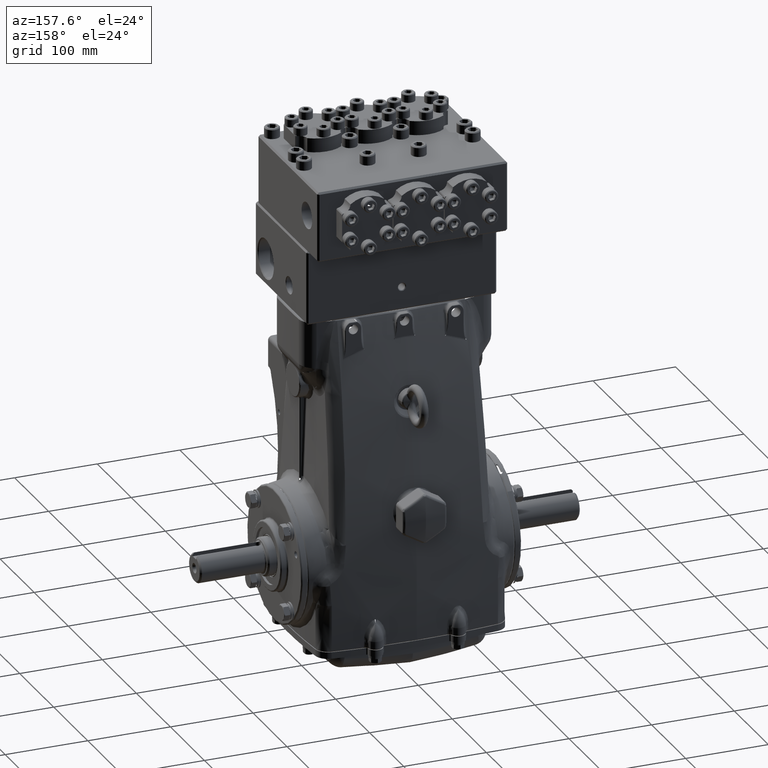
[diagram: clean part render]
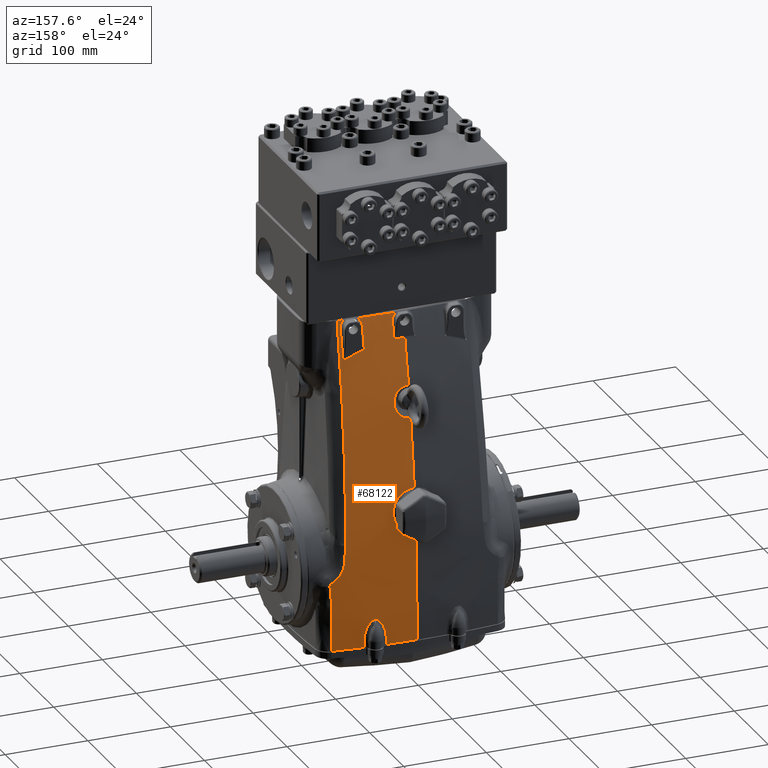
[diagram: same view with one face highlighted and labeled with its STEP entity id]
A machine part, auxiliary view. The second image highlights one B-rep face of the part: STEP entity #68122.
In plain terms, the highlighted face is a freeform B-spline surface patch.
Its self-contained STEP definition (entity closure, byte-faithful):
#248 = CARTESIAN_POINT ( 'NONE',  ( 0.5866270310992308668, 3.003605991276457665, 7.263837854307576336 ) ) ;
#272 = CARTESIAN_POINT ( 'NONE',  ( 3.039011978134963599, 3.634068006665481132, -3.464566929133887641 ) ) ;
#676 = CARTESIAN_POINT ( 'NONE',  ( 0.2095221922085636901, 2.804270214625033564, 8.432433907178610966 ) ) ;
#830 = ORIENTED_EDGE ( 'NONE', *, *, #17964, .F. ) ;
#846 = CARTESIAN_POINT ( 'NONE',  ( 1.449436370701254084, 3.752553886590621168, -3.068352961861494865 ) ) ;
#869 = CARTESIAN_POINT ( 'NONE',  ( 0.7397035643693123941, 2.916289227052626387, 7.762113618273943416 ) ) ;
#889 = CARTESIAN_POINT ( 'NONE',  ( 3.551602069988255561, 3.576884494888211474, -3.618486580175574119 ) ) ;
#1261 = B_SPLINE_CURVE_WITH_KNOTS ( 'NONE', 3,
 ( #36478, #74314, #112025, #27189 ),
 .UNSPECIFIED., .F., .F.,
 ( 4, 4 ),
 ( 0.07683548032053984234, 0.2183527470823627969 ),
 .UNSPECIFIED. ) ;
#1451 = CARTESIAN_POINT ( 'NONE',  ( 1.692141204651328890, 3.745266233888612462, -2.327252932663744112 ) ) ;
#1496 = CARTESIAN_POINT ( 'NONE',  ( 4.162177714576953846, 1.810918097613182676, 11.77166119179824300 ) ) ;
#1901 = CARTESIAN_POINT ( 'NONE',  ( 2.942018870098606520, 2.055321169199334275, 11.33109302986570199 ) ) ;
#2099 = CARTESIAN_POINT ( 'NONE',  ( 4.544432623231603685, 3.550877425722074321, 1.666088105590197266 ) ) ;
#2110 = B_SPLINE_CURVE_WITH_KNOTS ( 'NONE', 3,
 ( #69578, #107289, #22452, #60256 ),
 .UNSPECIFIED., .F., .F.,
 ( 4, 4 ),
 ( 0.0000000000000000000, 0.09425507187444827351 ),
 .UNSPECIFIED. ) ;
#2296 = CARTESIAN_POINT ( 'NONE',  ( 2.037546284313050737, 2.049126121222538899, 11.65519690014961007 ) ) ;
#2433 = CARTESIAN_POINT ( 'NONE',  ( 4.024767326900356323, 3.497556249445210597, -0.2810403410606585051 ) ) ;
#2461 = CARTESIAN_POINT ( 'NONE',  ( 0.6066692386818304250, 3.634623501762116238, 1.897385861898235548 ) ) ;
#2713 = CARTESIAN_POINT ( 'NONE',  ( 4.883813966465876177, 3.396858116181146858, -3.567180029828334042 ) ) ;
#2751 = EDGE_CURVE ( 'NONE', #95162, #8699, #77875, .T. ) ;
#3074 = CARTESIAN_POINT ( 'NONE',  ( 1.024435411022623921, 3.571572505471939607, 2.573108338563020236 ) ) ;
#3128 = CARTESIAN_POINT ( 'NONE',  ( 1.716375957087106441, 2.052498921085579742, 11.72107166240338039 ) ) ;
#3318 = CARTESIAN_POINT ( 'NONE',  ( 5.310323703294068665, 1.636154509958448688, 11.77166884028941496 ) ) ;
#3624 = CARTESIAN_POINT ( 'NONE',  ( 3.662864918516175017, 3.530414466125733508, 0.03327870869572076284 ) ) ;
#3674 = CARTESIAN_POINT ( 'NONE',  ( 0.9322681569456621187, 3.518899654689752410, 3.201470031487209322 ) ) ;
#3686 = CARTESIAN_POINT ( 'NONE',  ( -3.196343411175747841E-15, 3.225021646629493866, 5.912001805326092985 ) ) ;
#3924 = CARTESIAN_POINT ( 'NONE',  ( 5.472957139144667416, 2.831342062912356905, 6.788105265077287065 ) ) ;
#4279 = CARTESIAN_POINT ( 'NONE',  ( 0.5211656489503374567, 3.485184594651426604, 3.644906831707051875 ) ) ;
#4469 = CARTESIAN_POINT ( 'NONE',  ( 2.608830733332581531, 2.367219992948422558, 10.08390193469189811 ) ) ;
#4679 = CARTESIAN_POINT ( 'NONE',  ( -2.031392273483142009E-15, 3.776525152449977885, -3.618486580175580780 ) ) ;
#4862 = B_SPLINE_CURVE_WITH_KNOTS ( 'NONE', 3,
 ( #21421, #59226, #97016, #12126, #49925, #87761 ),
 .UNSPECIFIED., .F., .F.,
 ( 4, 2, 4 ),
 ( 0.0000000000000000000, 0.01103432557004347184, 0.02206865114008694367 ),
 .UNSPECIFIED. ) ;
#5284 = CARTESIAN_POINT ( 'NONE',  ( 0.3105895857793830594, 2.085520190960778120, 11.77166119179820569 ) ) ;
#5742 = EDGE_CURVE ( 'NONE', #22165, #64659, #31258, .T. ) ;
#5898 = CARTESIAN_POINT ( 'NONE',  ( 0.5457613359980010292, 3.875208897862037372, 1.666088105590251001 ) ) ;
#5996 = CARTESIAN_POINT ( 'NONE',  ( 2.030349408163365510, 3.725014280591822491, -2.147670018354700616 ) ) ;
#6088 = CARTESIAN_POINT ( 'NONE',  ( 2.485063582164364959, 3.687720508793976837, -3.068355571221270228 ) ) ;
#6509 = CARTESIAN_POINT ( 'NONE',  ( 0.7353401334498111952, 3.769223481296068101, -3.567180029828338039 ) ) ;
#6613 = CARTESIAN_POINT ( 'NONE',  ( 2.343889731061508108, 3.703185555783065741, -2.484351639157587943 ) ) ;
#7095 = CARTESIAN_POINT ( 'NONE',  ( 1.922095920021692050, 2.367095942449277235, 10.31063246072288386 ) ) ;
#7123 = CARTESIAN_POINT ( 'NONE',  ( 1.329266208923760129, 2.058867429061196574, 11.77166884028940608 ) ) ;
#7725 = CARTESIAN_POINT ( 'NONE',  ( 1.548991277570393787, 3.272628146518004044, 6.788105265077287065 ) ) ;
#7888 = CARTESIAN_POINT ( 'NONE',  ( 3.056714633409059800, 1.953847332546420956, 11.70674875285134853 ) ) ;
#7927 = CARTESIAN_POINT ( 'NONE',  ( 0.01470502531292140584, 3.780293682079583828, -3.424427992402220955 ) ) ;
#7944 = CARTESIAN_POINT ( 'NONE',  ( 3.160157785945038711, 3.011595640940678997, 6.234294448528373778 ) ) ;
#8307 = CARTESIAN_POINT ( 'NONE',  ( 2.941019945781940148, 2.046648092384458995, 11.36797252524078239 ) ) ;
#8339 = CARTESIAN_POINT ( 'NONE',  ( 1.788184241145831965, 3.728565110077600941, -3.515873479481099739 ) ) ;
#8448 = ORIENTED_EDGE ( 'NONE', *, *, #82220, .F. ) ;
#8542 = CARTESIAN_POINT ( 'NONE',  ( 0.6242875514103386481, 3.774173249013723641, -3.424427434650908264 ) ) ;
#8699 = VERTEX_POINT ( 'NONE', #73672 ) ;
#8926 = CARTESIAN_POINT ( 'NONE',  ( 0.03162639638780506690, 3.056384167853153588, 6.971330285472710386 ) ) ;
#8947 = CARTESIAN_POINT ( 'NONE',  ( 2.617725878232745274, 1.978461066338805807, 11.77167648878057449 ) ) ;
#9150 = CARTESIAN_POINT ( 'NONE',  ( 3.066176771644165910, 1.949429934523600805, 11.72103354203386694 ) ) ;
#9182 = CARTESIAN_POINT ( 'NONE',  ( 9.705473735494732134E-31, 2.366950722864918255, 10.57665827853426066 ) ) ;
#9211 = CARTESIAN_POINT ( 'NONE',  ( 0.3826192350390744124, 2.109363192300772294, 11.66918019247287930 ) ) ;
#9537 = CARTESIAN_POINT ( 'NONE',  ( 0.4767192319095203135, 3.024395439915378514, 7.147874119973693929 ) ) ;
#9561 = CARTESIAN_POINT ( 'NONE',  ( 3.016919674220464476, 1.943007137088806457, 11.77165354330710478 ) ) ;
#9690 = VERTEX_POINT ( 'NONE', #32080 ) ;
#9968 = CARTESIAN_POINT ( 'NONE',  ( 0.3334209507436446951, 2.811199870582222538, 8.389089765819207400 ) ) ;
#10160 = CARTESIAN_POINT ( 'NONE',  ( 0.7380680610332420732, 2.934538389668454261, 7.656408144005571792 ) ) ;
#10179 = CARTESIAN_POINT ( 'NONE',  ( 4.012125609158470496, 3.504591151798397863, -0.4380329796275670429 ) ) ;
#10185 = CARTESIAN_POINT ( 'NONE',  ( 3.550896890505610415, 3.579964127238663973, -3.464566929133851669 ) ) ;
#10390 = B_SPLINE_CURVE_WITH_KNOTS ( 'NONE', 3,
 ( #55402, #93199, #8307, #46105, #83929, #121605, #36799, #74632, #112336, #27505, #65341, #103081, #18207, #56010, #93809 ),
 .UNSPECIFIED., .F., .F.,
 ( 4, 2, 1, 2, 2, 2, 2, 4 ),
 ( 0.0000000000000000000, 0.001441368081631610922, 0.002882736163263221844, 0.004324104244894833200, 0.005765472326526443689, 0.008648208489789794770, 0.01008957657142146858, 0.01153094465305314412 ),
 .UNSPECIFIED. ) ;
#10579 = CARTESIAN_POINT ( 'NONE',  ( -2.426368433873683033E-31, 2.800345999324967750, 8.457339793419727414 ) ) ;
#10750 = CARTESIAN_POINT ( 'NONE',  ( 1.613789042051937628, 3.749257858295591106, -2.443543072824756912 ) ) ;
#10773 = CARTESIAN_POINT ( 'NONE',  ( 0.5847385670287439385, 2.843997516679625637, 8.189249259980558193 ) ) ;
#10792 = CARTESIAN_POINT ( 'NONE',  ( 3.910609380025737547, 3.533348648068823206, -3.618486580175578560 ) ) ;
#11198 = CARTESIAN_POINT ( 'NONE',  ( 2.941961549965390166, 2.367296412994850829, 9.943150386838313537 ) ) ;
#11364 = CARTESIAN_POINT ( 'NONE',  ( 1.927981188648263622, 3.731439516928716227, -2.140962621584236558 ) ) ;
#11408 = CARTESIAN_POINT ( 'NONE',  ( 4.471409995120889214, 1.768528750177872144, 11.77166119179819681 ) ) ;
#11603 = CARTESIAN_POINT ( 'NONE',  ( 2.088698376224152664, 2.032615686645046438, 11.70912154631549384 ) ) ;
#11773 = CARTESIAN_POINT ( 'NONE',  ( 0.4614030653125713033, 3.643299235763641342, 1.809695604549146353 ) ) ;
#12017 = CARTESIAN_POINT ( 'NONE',  ( 4.852819270003458030, 3.503779040536588507, 1.666088105590210811 ) ) ;
#12126 = CARTESIAN_POINT ( 'NONE',  ( 3.285140023969417289, 3.510887348803120034, 1.261192525168034040 ) ) ;
#12286 = B_SPLINE_CURVE_WITH_KNOTS ( 'NONE', 3,
 ( #31153, #69003, #106718, #21873 ),
 .UNSPECIFIED., .F., .F.,
 ( 4, 4 ),
 ( 0.001019743324161593440, 0.05691906024910405038 ),
 .UNSPECIFIED. ) ;
#12348 = CARTESIAN_POINT ( 'NONE',  ( 3.966949127469222347, 3.501669356983469150, -0.1877683356444751483 ) ) ;
#12374 = CARTESIAN_POINT ( 'NONE',  ( 0.9855687956542955597, 3.586287134623951989, 2.408543342345550453 ) ) ;
#12432 = CARTESIAN_POINT ( 'NONE',  ( 2.102795006353571416, 2.028751148172999397, 11.72106292052996857 ) ) ;
#12461 = B_SPLINE_CURVE_WITH_KNOTS ( 'NONE', 3,
 ( #75686, #113371, #28548, #66375, #104119, #19255, #57057, #94854, #9968, #47757, #85593, #676, #38446, #76289, #113984, #29154, #66984, #104727, #19871, #57675, #95465, #10579 ),
 .UNSPECIFIED., .F., .F.,
 ( 4, 2, 2, 2, 2, 2, 2, 2, 2, 2, 4 ),
 ( 0.0000000000000000000, 0.003996669937201158262, 0.004995837421501486859, 0.005995004905801814589, 0.007993339874402477854, 0.009991674843003140252, 0.01199000981160380265, 0.01398834478020446505, 0.01498751226450479104, 0.01548709600665495664, 0.01598667974880511877 ),
 .UNSPECIFIED. ) ;
#12623 = CARTESIAN_POINT ( 'NONE',  ( 5.167209544333353222, 3.351205553017578165, -3.567180029828329157 ) ) ;
#12928 = CARTESIAN_POINT ( 'NONE',  ( 3.799504976992992500, 3.518995280183945695, -0.09031071293400218247 ) ) ;
#12976 = CARTESIAN_POINT ( 'NONE',  ( 0.9985212442439773683, 3.532901548156912597, 3.027631203323252862 ) ) ;
#13029 = CARTESIAN_POINT ( 'NONE',  ( 0.3291895582293558054, 2.097288294947158960, 11.72108940143261435 ) ) ;
#13195 = CARTESIAN_POINT ( 'NONE',  ( 0.5099476513739285011, 2.249991768609127085, 11.07376066516228796 ) ) ;
#13224 = CARTESIAN_POINT ( 'NONE',  ( 5.472957139144666527, 1.607457717938263864, 11.77166884028941496 ) ) ;
#13236 = EDGE_CURVE ( 'NONE', #63473, #84820, #65122, .T. ) ;
#13530 = CARTESIAN_POINT ( 'NONE',  ( 3.365474024887549209, 3.538810821463818534, 0.5950371287573616996 ) ) ;
#13581 = CARTESIAN_POINT ( 'NONE',  ( 0.6330671108750342002, 3.490888361976953735, 3.567271661205070554 ) ) ;
#13613 = B_SPLINE_CURVE_WITH_KNOTS ( 'NONE', 3,
 ( #37898, #75750, #113438, #28617 ),
 .UNSPECIFIED., .F., .F.,
 ( 4, 4 ),
 ( 0.0000000000000000000, 0.02658444585355710169 ),
 .UNSPECIFIED. ) ;
#13777 = CARTESIAN_POINT ( 'NONE',  ( 1.922095920021692050, 2.367095942449277235, 10.31063246072288386 ) ) ;
#13985 = CARTESIAN_POINT ( 'NONE',  ( -1.928577636452524757E-15, 3.779527559055117170, -3.464566929133858331 ) ) ;
#14595 = CARTESIAN_POINT ( 'NONE',  ( 0.09184632771057957279, 3.776525152449977885, -3.618486580175580780 ) ) ;
#14601 = CARTESIAN_POINT ( 'NONE',  ( 1.449436370701254084, 3.752553886590621168, -3.068352961861494865 ) ) ;
#14886 = CARTESIAN_POINT ( 'NONE',  ( 1.951495101333295068, 3.729976412463448909, -2.137463112498968254 ) ) ;
#15205 = CARTESIAN_POINT ( 'NONE',  ( 0.6073683219925143373, 2.081169930657294831, 11.77166119179829629 ) ) ;
#15308 = CARTESIAN_POINT ( 'NONE',  ( 1.984111132156669566, 3.727934984330343759, -2.137463051047669538 ) ) ;
#15358 = VERTEX_POINT ( 'NONE', #23601 ) ;
#15816 = CARTESIAN_POINT ( 'NONE',  ( 0.7729125040845628014, 3.870372719911775672, 1.666088105590241453 ) ) ;
#15918 = CARTESIAN_POINT ( 'NONE',  ( 2.271067985336105099, 3.708748354778688139, -2.365127835354815300 ) ) ;
#16218 = CARTESIAN_POINT ( 'NONE',  ( 0.5099428815279960503, 2.366960697202754371, 10.55811025315342633 ) ) ;
#16424 = CARTESIAN_POINT ( 'NONE',  ( 0.9922770438982243535, 3.762205617985176609, -3.567180029828336263 ) ) ;
#16937 = VERTEX_POINT ( 'NONE', #97108 ) ;
#17025 = CARTESIAN_POINT ( 'NONE',  ( 1.587140535387032036, 2.046882848346886163, 11.77166884028941318 ) ) ;
#17081 = CARTESIAN_POINT ( 'NONE',  ( 3.048361850561355890, 1.956657500317994680, 11.69856850100573276 ) ) ;
#17223 = CARTESIAN_POINT ( 'NONE',  ( 1.901787320747102331E-15, 3.780296879149135147, -3.424427673772763914 ) ) ;
#17242 = CARTESIAN_POINT ( 'NONE',  ( 3.196827980763150112, 3.231218854497723392, 4.535599982320241530 ) ) ;
#17621 = CARTESIAN_POINT ( 'NONE',  ( 2.102795006353571416, 2.028751148172999397, 11.72106292052996857 ) ) ;
#17627 = CARTESIAN_POINT ( 'NONE',  ( 1.853946495142653861, 3.256623459385927788, 6.788105265077284400 ) ) ;
#17829 = CARTESIAN_POINT ( 'NONE',  ( 0.3709859988046583790, 3.778175621808380846, -3.424427730225346522 ) ) ;
#17964 = EDGE_CURVE ( 'NONE', #62690, #31589, #58507, .T. ) ;
#18207 = CARTESIAN_POINT ( 'NONE',  ( 2.789180568853216524, 1.981359769075150101, 11.69621483026512543 ) ) ;
#18212 = CARTESIAN_POINT ( 'NONE',  ( 0.004456384663609157075, 3.056492043561971794, 6.970738724742552073 ) ) ;
#18239 = CARTESIAN_POINT ( 'NONE',  ( 2.146491763667625285, 3.706100310773567053, -3.515873479481095742 ) ) ;
#18462 = B_SPLINE_CURVE_WITH_KNOTS ( 'NONE', 3,
 ( #120931, #36128, #73972, #111677 ),
 .UNSPECIFIED., .F., .F.,
 ( 4, 4 ),
 ( 0.6644276810892916219, 1.000000000000000000 ),
 .UNSPECIFIED. ) ;
#18498 = CARTESIAN_POINT ( 'NONE',  ( 0.4473773495031557190, 2.130438592574027901, 11.57892464736225158 ) ) ;
#18829 = CARTESIAN_POINT ( 'NONE',  ( 0.4200475372028452115, 3.032338896872305511, 7.103818357967789154 ) ) ;
#18857 = CARTESIAN_POINT ( 'NONE',  ( 3.016919640314343454, 1.943001504886792796, 11.77167648878059758 ) ) ;
#19255 = CARTESIAN_POINT ( 'NONE',  ( 0.4031742777691404434, 2.817228727787468134, 8.351817005037553088 ) ) ;
#19390 = CARTESIAN_POINT ( 'NONE',  ( 1.901787320747102331E-15, 3.780296879149135147, -3.424427673772763914 ) ) ;
#19449 = CARTESIAN_POINT ( 'NONE',  ( 0.7206146849942330901, 2.952796480231095977, 7.551548676411417915 ) ) ;
#19468 = CARTESIAN_POINT ( 'NONE',  ( 3.958060253309640064, 3.528091304124755911, -1.065759574945015498 ) ) ;
#19474 = CARTESIAN_POINT ( 'NONE',  ( 3.480378942241151741, 1.894773315943172109, 11.77165354330708880 ) ) ;
#19650 = B_SPLINE_CURVE_WITH_KNOTS ( 'NONE', 3,
 ( #846, #38614, #76461, #114153, #29329, #67156, #104899, #20043, #57847, #95638, #10750, #48541, #86372, #1451, #39230, #77073, #114758, #29936, #67772, #105505, #20654, #58463, #96251, #11364, #49153, #86996 ),
 .UNSPECIFIED., .F., .F.,
 ( 4, 2, 2, 2, 2, 2, 2, 2, 2, 2, 2, 2, 4 ),
 ( 1.387778780781445521E-17, 0.007071297604193001012, 0.01060694640628949414, 0.01237477080733773854, 0.01414259520838598294, 0.01767824401048250643, 0.01944606841153077859, 0.02121389281257905074, 0.02298171721362732289, 0.02474954161467559505, 0.02651736601572386720, 0.02740127821624800328, 0.02828519041677213935 ),
 .UNSPECIFIED. ) ;
#19871 = CARTESIAN_POINT ( 'NONE',  ( 0.02649784136558758565, 2.800402659177489983, 8.456977757622452074 ) ) ;
#20043 = CARTESIAN_POINT ( 'NONE',  ( 1.552044909759967339, 3.751937257860509689, -2.568846466195839451 ) ) ;
#20058 = CARTESIAN_POINT ( 'NONE',  ( 0.3402254847084953959, 2.366954046111033882, 10.57045866532416234 ) ) ;
#20066 = CARTESIAN_POINT ( 'NONE',  ( 0.6426989868568169229, 2.858878596345433287, 8.100184576930310243 ) ) ;
#20092 = CARTESIAN_POINT ( 'NONE',  ( 3.909663389791890431, 3.536467545462993467, -3.464566929133856110 ) ) ;
#20558 = EDGE_CURVE ( 'NONE', #21562, #47837, #12286, .T. ) ;
#20654 = CARTESIAN_POINT ( 'NONE',  ( 1.862070232197094555, 3.735488079041404674, -2.167121991210611665 ) ) ;
#20700 = CARTESIAN_POINT ( 'NONE',  ( 4.271543492749502846, 3.486091687875209288, -3.618486580175591882 ) ) ;
#21069 = CARTESIAN_POINT ( 'NONE',  ( 0.2709160517427007253, 3.650717894589675439, 1.735643675422942067 ) ) ;
#21311 = CARTESIAN_POINT ( 'NONE',  ( 4.792045308734939724, 1.720271994413820726, 11.77166119179817905 ) ) ;
#21421 = CARTESIAN_POINT ( 'NONE',  ( 3.351908329817678833, 3.535673982351944744, 0.6863570147038513536 ) ) ;
#21513 = CARTESIAN_POINT ( 'NONE',  ( 1.926163603352576192, 2.116488260724696424, 11.40497519155297113 ) ) ;
#21562 = VERTEX_POINT ( 'NONE', #45497 ) ;
#21645 = CARTESIAN_POINT ( 'NONE',  ( 3.999693577117741317, 3.498425686486035247, -0.2138186364764404768 ) ) ;
#21669 = CARTESIAN_POINT ( 'NONE',  ( 0.9001469298910884653, 3.603406470987037480, 2.222964837826389761 ) ) ;
#21873 = CARTESIAN_POINT ( 'NONE',  ( 3.957781727276481476, 3.531041095253700135, -1.223694571038026702 ) ) ;
#21914 = CARTESIAN_POINT ( 'NONE',  ( 5.146563101109652649, 3.456735926573856421, 1.666088105590221469 ) ) ;
#22165 = VERTEX_POINT ( 'NONE', #14886 ) ;
#22243 = CARTESIAN_POINT ( 'NONE',  ( 2.485991824541025075, 3.684251757287082540, -3.305742822090556921 ) ) ;
#22272 = CARTESIAN_POINT ( 'NONE',  ( 1.015051384682704949, 3.538358104258760850, 2.961299302375628439 ) ) ;
#22334 = CARTESIAN_POINT ( 'NONE',  ( 0.5151641289255387557, 2.094866612995622379, 11.72108779396292988 ) ) ;
#22378 = ORIENTED_EDGE ( 'NONE', *, *, #84056, .T. ) ;
#22452 = CARTESIAN_POINT ( 'NONE',  ( 2.856988886733764055, 1.969332119163633044, 11.72104101039461277 ) ) ;
#22524 = CARTESIAN_POINT ( 'NONE',  ( 5.341456586250219019, 3.321576627475916421, -3.567180029828339816 ) ) ;
#22829 = CARTESIAN_POINT ( 'NONE',  ( 3.433946519524526675, 3.541807891261862462, 0.3751013449414513090 ) ) ;
#22872 = CARTESIAN_POINT ( 'NONE',  ( 0.7113994493961518506, 3.495816102643675372, 3.500996342781727222 ) ) ;
#23279 = CARTESIAN_POINT ( 'NONE',  ( 5.245148147835386168E-15, 2.086614173228352520, 11.77165354330708702 ) ) ;
#23486 = CARTESIAN_POINT ( 'NONE',  ( 0.06879029287596165332, 3.475299937072044987, 3.782957108726556328 ) ) ;
#23601 = CARTESIAN_POINT ( 'NONE',  ( 3.075277783650770314, 1.948537073337893721, 11.72103320572180429 ) ) ;
#23881 = CARTESIAN_POINT ( 'NONE',  ( 0.09207796433345837028, 3.779527559055117170, -3.464566929133858331 ) ) ;
#23888 = CARTESIAN_POINT ( 'NONE',  ( 1.447214697635420100, 3.747031218138626496, -3.424426838814072394 ) ) ;
#24135 = ORIENTED_EDGE ( 'NONE', *, *, #105962, .F. ) ;
#24483 = CARTESIAN_POINT ( 'NONE',  ( 0.2536578910174956403, 3.775828391058954292, -3.618486580175577672 ) ) ;
#24590 = EDGE_CURVE ( 'NONE', #63473, #101312, #71929, .T. ) ;
#25089 = CARTESIAN_POINT ( 'NONE',  ( 0.8465838755881149869, 2.075548634242388779, 11.77166119179828030 ) ) ;
#25184 = CARTESIAN_POINT ( 'NONE',  ( 2.198105368913941593, 3.713949761585035869, -2.272979038656028461 ) ) ;
#25687 = CARTESIAN_POINT ( 'NONE',  ( 1.033392015430271149, 3.862919049952886041, 1.666088105590231017 ) ) ;
#25790 = CARTESIAN_POINT ( 'NONE',  ( 2.474389933526435659, 3.690731535997991308, -2.881858389204126514 ) ) ;
#26060 = EDGE_CURVE ( 'NONE', #122330, #48674, #2110, .T. ) ;
#26297 = CARTESIAN_POINT ( 'NONE',  ( 1.206874167794767194, 3.754724690457360570, -3.567180029828330490 ) ) ;
#26519 = CARTESIAN_POINT ( 'NONE',  ( 3.247199614774384013, 3.435775041202732805, 2.404314508298649233 ) ) ;
#26692 = CARTESIAN_POINT ( 'NONE',  ( 3.713195160663779415, 3.561622530739679604, -3.424422476063181175 ) ) ;
#26910 = CARTESIAN_POINT ( 'NONE',  ( 1.886664134870914555, 2.030794006280190356, 11.77166884028941318 ) ) ;
#27118 = CARTESIAN_POINT ( 'NONE',  ( 0.1809801870104160992, 3.779792766037157747, -3.424427917497626428 ) ) ;
#27141 = CARTESIAN_POINT ( 'NONE',  ( 3.048361850561355890, 1.956657500317994680, 11.69856850100573276 ) ) ;
#27189 = CARTESIAN_POINT ( 'NONE',  ( -2.426368433873683033E-31, 2.800345999324967750, 8.457339793419727414 ) ) ;
#27505 = CARTESIAN_POINT ( 'NONE',  ( 2.860721376650469328, 1.995845229152549249, 11.61028039293616132 ) ) ;
#27534 = CARTESIAN_POINT ( 'NONE',  ( 2.192517691082281672, 3.234782077177078996, 6.788105265077283512 ) ) ;
#27799 = CARTESIAN_POINT ( 'NONE',  ( 0.4892614342494214785, 2.154574219338411201, 11.47617785457110173 ) ) ;
#28128 = CARTESIAN_POINT ( 'NONE',  ( 0.2798731182599345502, 3.046459260828721316, 7.025849307034176761 ) ) ;
#28154 = CARTESIAN_POINT ( 'NONE',  ( 2.592469632888194653, 3.672636526991721162, -3.515873479481110842 ) ) ;
#28548 = CARTESIAN_POINT ( 'NONE',  ( 0.4894363958340310905, 2.826974963259975215, 8.292067755253222927 ) ) ;
#28617 = CARTESIAN_POINT ( 'NONE',  ( 1.922095920021692050, 2.367095942449277235, 10.31063246072288386 ) ) ;
#28746 = CARTESIAN_POINT ( 'NONE',  ( 0.6899832807443878613, 2.970651572174605626, 7.449726362109731603 ) ) ;
#28770 = CARTESIAN_POINT ( 'NONE',  ( 3.480378834013866385, 1.894767692750219057, 11.77167648878058159 ) ) ;
#29154 = CARTESIAN_POINT ( 'NONE',  ( 0.06608084062435326533, 2.800708316618456539, 8.455025747844617356 ) ) ;
#29329 = CARTESIAN_POINT ( 'NONE',  ( 1.503370859183929875, 3.753596658721070511, -2.700955149616227402 ) ) ;
#29351 = CARTESIAN_POINT ( 'NONE',  ( 0.7034700128075387360, 2.880581387444483887, 7.971202912171843735 ) ) ;
#29372 = CARTESIAN_POINT ( 'NONE',  ( 3.815064366407124652, 1.855203238539271826, 11.77165354330708880 ) ) ;
#29936 = CARTESIAN_POINT ( 'NONE',  ( 1.787361210172091486, 3.739933249615894351, -2.222994203376392974 ) ) ;
#29982 = CARTESIAN_POINT ( 'NONE',  ( 4.270460663811117996, 3.489240027746113970, -3.464566929133868989 ) ) ;
#29994 = B_SPLINE_CURVE_WITH_KNOTS ( 'NONE', 3,
 ( #2433, #40218, #78064, #115750, #30922, #68765, #106487, #21645, #59440, #97233, #12348, #50147 ),
 .UNSPECIFIED., .F., .F.,
 ( 4, 2, 2, 2, 2, 4 ),
 ( 0.0000000000000000000, 0.0004037022764436741908, 0.0008074045528873483816, 0.001614809105774696763, 0.002422213658662045362, 0.003229618211549393526 ),
 .UNSPECIFIED. ) ;
#30070 = ORIENTED_EDGE ( 'NONE', *, *, #91295, .F. ) ;
#30349 = CARTESIAN_POINT ( 'NONE',  ( 0.06870179825646191563, 3.653956845846769053, 1.703601677684709825 ) ) ;
#30588 = CARTESIAN_POINT ( 'NONE',  ( 4.582039247850270947, 3.442311696620030670, -3.618486580175603873 ) ) ;
#30789 = CARTESIAN_POINT ( 'NONE',  ( 1.954767087288371119, 2.089099683865084600, 11.51179189539152681 ) ) ;
#30922 = CARTESIAN_POINT ( 'NONE',  ( 4.022527034758161868, 3.496940846659434055, -0.2549454537783310548 ) ) ;
#30948 = CARTESIAN_POINT ( 'NONE',  ( 0.7838772260317130591, 3.619132060473199797, 2.056793543875875319 ) ) ;
#31153 = CARTESIAN_POINT ( 'NONE',  ( 3.957806744477383898, 3.530638751054765212, -3.424421330816489029 ) ) ;
#31196 = CARTESIAN_POINT ( 'NONE',  ( 5.106079848036618074, 1.670502308164350191, 11.77166119179820036 ) ) ;
#31258 = B_SPLINE_CURVE_WITH_KNOTS ( 'NONE', 3,
 ( #82922, #120578, #35772, #73603 ),
 .UNSPECIFIED., .F., .F.,
 ( 4, 4 ),
 ( 0.0000000000000000000, 0.0008310209194798113229 ),
 .UNSPECIFIED. ) ;
#31574 = CARTESIAN_POINT ( 'NONE',  ( 1.038138966578933564, 3.559708373852714214, 2.708789585773724973 ) ) ;
#31589 = VERTEX_POINT ( 'NONE', #34645 ) ;
#31625 = CARTESIAN_POINT ( 'NONE',  ( 0.9157032318170638119, 2.085982717345006954, 11.72108410469878592 ) ) ;
#31820 = CARTESIAN_POINT ( 'NONE',  ( 5.330941517263692475, 3.425513843878341902, 1.666088105590230795 ) ) ;
#32070 = EDGE_CURVE ( 'NONE', #32994, #48674, #10390, .T. ) ;
#32080 = CARTESIAN_POINT ( 'NONE',  ( -2.426368433873683033E-31, 2.800345999324967750, 8.457339793419727414 ) ) ;
#32125 = CARTESIAN_POINT ( 'NONE',  ( 3.520116567744814517, 3.539435181202170710, 0.2121852385927017748 ) ) ;
#32170 = CARTESIAN_POINT ( 'NONE',  ( 0.8733267082850935115, 3.510757807458485313, 3.305252506140973878 ) ) ;
#32422 = CARTESIAN_POINT ( 'NONE',  ( 5.472957139144666527, 3.298373256058383607, -3.567180029828340260 ) ) ;
#32573 = CARTESIAN_POINT ( 'NONE',  ( 5.245154553062564334E-15, 2.086608538183193584, 11.77167648878057982 ) ) ;
#32772 = CARTESIAN_POINT ( 'NONE',  ( 0.2691688120389184591, 3.477779146167875535, 3.747954516476541986 ) ) ;
#32994 = VERTEX_POINT ( 'NONE', #49242 ) ;
#33169 = CARTESIAN_POINT ( 'NONE',  ( 0.1152416266213332624, 2.086614173228352520, 11.77165354330708880 ) ) ;
#33513 = ORIENTED_EDGE ( 'NONE', *, *, #5742, .F. ) ;
#33778 = CARTESIAN_POINT ( 'NONE',  ( 0.2542215708781392913, 3.778826883383619162, -3.464566929133854778 ) ) ;
#34389 = CARTESIAN_POINT ( 'NONE',  ( 0.5140337625577412473, 3.772663664345201173, -3.618486580175573231 ) ) ;
#34469 = VERTEX_POINT ( 'NONE', #9182 ) ;
#34486 = CARTESIAN_POINT ( 'NONE',  ( 2.130487266154514447, 3.718528088726727354, -2.207560004171498669 ) ) ;
#34645 = CARTESIAN_POINT ( 'NONE',  ( 1.449436370701254084, 3.752553886590621168, -3.068352961861494865 ) ) ;
#34897 = ORIENTED_EDGE ( 'NONE', *, *, #109450, .F. ) ;
#34982 = CARTESIAN_POINT ( 'NONE',  ( 1.114009668533421316, 2.067240440788547851, 11.77166119179824477 ) ) ;
#35088 = CARTESIAN_POINT ( 'NONE',  ( 2.408966609891268984, 3.697616689206262297, -2.634289480555723539 ) ) ;
#35590 = CARTESIAN_POINT ( 'NONE',  ( 1.248211835035086592, 3.855137457873697659, 1.666088105590234125 ) ) ;
#35607 = B_SPLINE_CURVE_WITH_KNOTS ( 'NONE', 3,
 ( #94043, #9150, #46952, #84780 ),
 .UNSPECIFIED., .F., .F.,
 ( 4, 4 ),
 ( 0.0000000000000000000, 1.000000000000000000 ),
 .UNSPECIFIED. ) ;
#35772 = CARTESIAN_POINT ( 'NONE',  ( 1.973264075032692633, 3.728616458738231998, -2.136422621240298803 ) ) ;
#35980 = CARTESIAN_POINT ( 'NONE',  ( 2.732372906742642993, 3.662491913869438509, -3.424425288762088737 ) ) ;
#36128 = CARTESIAN_POINT ( 'NONE',  ( -2.614932794956200729E-16, 3.770281652882307988, -0.002669951958018486858 ) ) ;
#36204 = VERTEX_POINT ( 'NONE', #101311 ) ;
#36207 = CARTESIAN_POINT ( 'NONE',  ( 1.471930013320035924, 3.743418453583435390, -3.567180029828333154 ) ) ;
#36411 = CARTESIAN_POINT ( 'NONE',  ( 0.08596830526876800271, 3.780183506395370152, -3.424427974852214618 ) ) ;
#36434 = CARTESIAN_POINT ( 'NONE',  ( 3.083322352733954830, 2.337157510713007369, 10.02836769579707266 ) ) ;
#36478 = CARTESIAN_POINT ( 'NONE',  ( 9.705473735494732134E-31, 2.366950722864918255, 10.57665827853426066 ) ) ;
#36746 = B_SPLINE_CURVE_WITH_KNOTS ( 'NONE', 3,
 ( #103087, #18212, #56015, #93814, #8926, #46723, #84553, #122218, #37419, #75262, #112953, #28128, #65962, #103700, #18829, #56633, #94433, #9537, #47339, #85173, #248, #38026, #75883, #113565, #28746, #66568, #104317, #19449, #57258, #95047, #10160, #47953, #85787, #869, #38639, #76486, #114176, #29351, #67181, #104923, #20066, #57875, #95662, #10773, #48564 ),
 .UNSPECIFIED., .F., .F.,
 ( 4, 2, 1, 2, 2, 2, 2, 2, 2, 2, 2, 2, 2, 2, 2, 2, 2, 2, 2, 2, 2, 2, 4 ),
 ( -5.999999999975354775E-08, 0.0003395165113669076332, 0.0006790930227338150185, 0.001358246045467626645, 0.002716552090935256403, 0.005433164181870515051, 0.008149776272805773700, 0.01086638836374102975, 0.01222469440920865603, 0.01358300045467628406, 0.01629961254561153663, 0.01901622463654678921, 0.02173283672748203832, 0.02444944881841728743, 0.02580775486388491025, 0.02716606090935254000, 0.02988267300028786544, 0.03124097904575552989, 0.03259928509122318740, 0.03803250927309366480, 0.03939081531856126334, 0.04074912136402886187, 0.04346573345496406587 ),
 .UNSPECIFIED. ) ;
#36799 = CARTESIAN_POINT ( 'NONE',  ( 2.909796763776722806, 2.015373524481933742, 11.51074649501153147 ) ) ;
#36825 = CARTESIAN_POINT ( 'NONE',  ( 2.215416232719626066, 2.009262782782168522, 11.77166884028940963 ) ) ;
#36918 = ORIENTED_EDGE ( 'NONE', *, *, #13236, .F. ) ;
#37031 = CARTESIAN_POINT ( 'NONE',  ( 1.320646138340188180, 3.752853252974094111, -3.424426759141142806 ) ) ;
#37083 = CARTESIAN_POINT ( 'NONE',  ( 0.5089368212144949055, 2.180115438804921535, 11.36806387182767253 ) ) ;
#37191 = B_SPLINE_CURVE_WITH_KNOTS ( 'NONE', 3,
 ( #84219, #121891, #37083, #74922, #112631, #27799, #65624, #103368, #18498, #56300, #94099, #9211, #47009, #84837, #122505 ),
 .UNSPECIFIED., .F., .F.,
 ( 4, 2, 1, 2, 2, 2, 2, 4 ),
 ( 0.0000000000000000000, 0.001450647595035343268, 0.002901295190070686536, 0.004351942785106029804, 0.005802590380141373072, 0.008703885570212059608, 0.01015453316524739941, 0.01160518076028274094 ),
 .UNSPECIFIED. ) ;
#37419 = CARTESIAN_POINT ( 'NONE',  ( 0.1425666951795569459, 3.054076932072221418, 6.983986189979732195 ) ) ;
#37442 = CARTESIAN_POINT ( 'NONE',  ( 2.609335073250302450, 3.203097206246929396, 6.788105265077278183 ) ) ;
#37898 = CARTESIAN_POINT ( 'NONE',  ( 1.922122788353095135, 2.134331509641288704, 11.33102910461567525 ) ) ;
#37932 = EDGE_CURVE ( 'NONE', #8699, #84820, #37191, .T. ) ;
#37976 = CARTESIAN_POINT ( 'NONE',  ( 4.024767326900356323, 3.497556249445210597, -0.2810403410606585051 ) ) ;
#38026 = CARTESIAN_POINT ( 'NONE',  ( 0.6074300611338609990, 2.998464660312248231, 7.292667734409299385 ) ) ;
#38049 = CARTESIAN_POINT ( 'NONE',  ( 3.039085619148012007, 3.633061029409601073, -3.515873479481128605 ) ) ;
#38303 = ORIENTED_EDGE ( 'NONE', *, *, #2751, .T. ) ;
#38446 = CARTESIAN_POINT ( 'NONE',  ( 0.1835905154519980598, 2.803308235039615237, 8.438511914163472127 ) ) ;
#38614 = CARTESIAN_POINT ( 'NONE',  ( 1.449918851696318844, 3.753734697060149283, -2.974230008064877584 ) ) ;
#38639 = CARTESIAN_POINT ( 'NONE',  ( 0.7371956410255970926, 2.910208371908691305, 7.797512150901630079 ) ) ;
#38663 = CARTESIAN_POINT ( 'NONE',  ( 3.815064221221454943, 1.855197621372513872, 11.77167648878058159 ) ) ;
#39230 = CARTESIAN_POINT ( 'NONE',  ( 1.706781216719245320, 3.744477168076211004, -2.308692450912484873 ) ) ;
#39277 = CARTESIAN_POINT ( 'NONE',  ( 4.162177769972608132, 1.810919968495875665, 11.77165354330707814 ) ) ;
#39878 = CARTESIAN_POINT ( 'NONE',  ( 4.580943909269144854, 3.445473805234652964, -3.464566929133880979 ) ) ;
#40081 = CARTESIAN_POINT ( 'NONE',  ( 2.003835267196671488, 2.062085479407867350, 11.61083578950713324 ) ) ;
#40218 = CARTESIAN_POINT ( 'NONE',  ( 4.025192622172919954, 3.497319579811000612, -0.2757587623723024572 ) ) ;
#40246 = CARTESIAN_POINT ( 'NONE',  ( 0.6338034442523297063, 3.632636060340988848, 1.917633660815332597 ) ) ;
#40493 = CARTESIAN_POINT ( 'NONE',  ( 4.884117836039036931, 3.395809871824721160, -3.618486580175574563 ) ) ;
#40793 = EDGE_CURVE ( 'NONE', #118534, #15358, #52752, .T. ) ;
#40852 = CARTESIAN_POINT ( 'NONE',  ( 1.029418783390900316, 3.568600676469680710, 2.606827069324715751 ) ) ;
#40903 = CARTESIAN_POINT ( 'NONE',  ( 1.582965544775467137, 2.059494654824524762, 11.72107419104107784 ) ) ;
#41102 = CARTESIAN_POINT ( 'NONE',  ( 5.310323719115619845, 1.636156385515110445, 11.77166119179825188 ) ) ;
#41416 = CARTESIAN_POINT ( 'NONE',  ( 3.647027291523595949, 3.531603023960265819, 0.04987067897304938574 ) ) ;
#41465 = CARTESIAN_POINT ( 'NONE',  ( 0.9083528698956195857, 3.515351552600679330, 3.246486174434550787 ) ) ;
#41479 = CARTESIAN_POINT ( 'NONE',  ( -2.730575176707549353E-15, 3.364668361119688811, 4.849011172016416182 ) ) ;
#41710 = CARTESIAN_POINT ( 'NONE',  ( 5.472957139144667416, 3.400455080633130844, 1.666088105590230795 ) ) ;
#41832 = ORIENTED_EDGE ( 'NONE', *, *, #40793, .F. ) ;
#41961 = ORIENTED_EDGE ( 'NONE', *, *, #117545, .T. ) ;
#42071 = CARTESIAN_POINT ( 'NONE',  ( 0.4614696581494263650, 3.482862801178580270, 3.677002194422539283 ) ) ;
#42257 = CARTESIAN_POINT ( 'NONE',  ( 2.776578712294497375, 2.367256534400909995, 10.01647498643020384 ) ) ;
#42466 = CARTESIAN_POINT ( 'NONE',  ( 0.1152416621717195638, 2.086608538183193584, 11.77167648878058159 ) ) ;
#43071 = CARTESIAN_POINT ( 'NONE',  ( 0.3105895569424969027, 2.085522069509412102, 11.77165354330704083 ) ) ;
#43679 = CARTESIAN_POINT ( 'NONE',  ( 0.5149578666385256076, 3.775650418719477042, -3.464566929133850337 ) ) ;
#43775 = CARTESIAN_POINT ( 'NONE',  ( 2.041536747216510683, 3.724301690662265685, -2.152060709845910136 ) ) ;
#44293 = CARTESIAN_POINT ( 'NONE',  ( 0.7349717768749606250, 3.768231822093953021, -3.618486580175579004 ) ) ;
#44397 = CARTESIAN_POINT ( 'NONE',  ( 2.373803387733699477, 3.700704596208036712, -2.547482343565529828 ) ) ;
#44900 = CARTESIAN_POINT ( 'NONE',  ( 1.329266146724833009, 2.058869309920938306, 11.77166119179824300 ) ) ;
#45014 = B_SPLINE_CURVE_WITH_KNOTS ( 'NONE', 3,
 ( #120790, #35980, #73827, #111530, #26692, #64534 ),
 .UNSPECIFIED., .F., .F.,
 ( 4, 2, 4 ),
 ( 0.0000000000000000000, 0.5000000000000000000, 1.000000000000000000 ),
 .UNSPECIFIED. ) ;
#45126 = CARTESIAN_POINT ( 'NONE',  ( 3.269204732900450772, 3.494166244084205619, 1.549803905489431921 ) ) ;
#45497 = CARTESIAN_POINT ( 'NONE',  ( 3.957806744477383898, 3.530638751054765212, -3.424421330816489029 ) ) ;
#45521 = CARTESIAN_POINT ( 'NONE',  ( 1.510842136852395434, 3.843602111723632309, 1.666088105590234569 ) ) ;
#45680 = CARTESIAN_POINT ( 'NONE',  ( 3.065777193951907176, 1.951112401953885245, 11.71431663168088555 ) ) ;
#45719 = CARTESIAN_POINT ( 'NONE',  ( 0.01866426497922715061, 3.780291642653942130, -3.424427992065139037 ) ) ;
#45741 = CARTESIAN_POINT ( 'NONE',  ( 3.133913998702548387, 2.819013614672498669, 7.504584520848139206 ) ) ;
#46105 = CARTESIAN_POINT ( 'NONE',  ( 2.937063316127539903, 2.038311024488808521, 11.40448764478979804 ) ) ;
#46131 = CARTESIAN_POINT ( 'NONE',  ( 1.787857065752813002, 3.727583758897499600, -3.567180029828340260 ) ) ;
#46331 = CARTESIAN_POINT ( 'NONE',  ( 0.8142392989144296989, 3.770025519803677838, -3.424427220812389372 ) ) ;
#46723 = CARTESIAN_POINT ( 'NONE',  ( 0.04508491497368615625, 3.056246480088033568, 6.972085310057500429 ) ) ;
#46743 = CARTESIAN_POINT ( 'NONE',  ( 2.617725865355033044, 1.978462945838119769, 11.77166884028940963 ) ) ;
#46952 = CARTESIAN_POINT ( 'NONE',  ( 3.057075495170156199, 1.950318810983594275, 11.72103387650828310 ) ) ;
#47009 = CARTESIAN_POINT ( 'NONE',  ( 0.3568954482566445430, 2.103047633739339339, 11.69630847844545229 ) ) ;
#47291 = EDGE_CURVE ( 'NONE', #51129, #95910, #4862, .T. ) ;
#47339 = CARTESIAN_POINT ( 'NONE',  ( 0.5165998983450890147, 3.017936561374008786, 7.183787123562115795 ) ) ;
#47363 = CARTESIAN_POINT ( 'NONE',  ( 3.024283775525298701, 3.166270219949427034, 6.788105265077287953 ) ) ;
#47757 = CARTESIAN_POINT ( 'NONE',  ( 0.2849470415078252383, 2.807992161906759598, 8.409073563300729859 ) ) ;
#47837 = VERTEX_POINT ( 'NONE', #62589 ) ;
#47861 = ORIENTED_EDGE ( 'NONE', *, *, #60806, .T. ) ;
#47953 = CARTESIAN_POINT ( 'NONE',  ( 0.7404268082824715380, 2.928453932034768226, 7.691546238491211440 ) ) ;
#47975 = CARTESIAN_POINT ( 'NONE',  ( 4.024767326900356323, 3.497556249445210597, -0.2810403410606585051 ) ) ;
#47980 = CARTESIAN_POINT ( 'NONE',  ( 3.551131950333158649, 3.578937583121846178, -3.515873479481092634 ) ) ;
#48204 = B_SPLINE_CURVE_WITH_KNOTS ( 'NONE', 3,
 ( #13777, #51557, #89396, #4469, #42257, #80100 ),
 .UNSPECIFIED., .F., .F.,
 ( 4, 2, 4 ),
 ( 0.0000000000000000000, 0.01377649459789080308, 0.02755298919578160616 ),
 .UNSPECIFIED. ) ;
#48541 = CARTESIAN_POINT ( 'NONE',  ( 1.651241377271888577, 3.747397938625225411, -2.384462525471408245 ) ) ;
#48564 = CARTESIAN_POINT ( 'NONE',  ( 0.5618534641297614485, 2.839490171766255067, 8.216384047504590171 ) ) ;
#48587 = CARTESIAN_POINT ( 'NONE',  ( 4.162177603785644386, 1.810914355847796475, 11.77167648878057093 ) ) ;
#48674 = VERTEX_POINT ( 'NONE', #92605 ) ;
#48987 = CARTESIAN_POINT ( 'NONE',  ( 2.941979610148215851, 2.268880967348662292, 10.40703492316160705 ) ) ;
#49153 = CARTESIAN_POINT ( 'NONE',  ( 1.939589167925357627, 3.730718792896203784, -2.138605117172201364 ) ) ;
#49197 = CARTESIAN_POINT ( 'NONE',  ( 4.471410051156515131, 1.768530620356180139, 11.77165354330703195 ) ) ;
#49242 = CARTESIAN_POINT ( 'NONE',  ( 2.942018870098606520, 2.055321169199334275, 11.33109302986570199 ) ) ;
#49397 = CARTESIAN_POINT ( 'NONE',  ( 2.075259964906321475, 2.036607043019153185, 11.69642671431908809 ) ) ;
#49559 = CARTESIAN_POINT ( 'NONE',  ( 0.5214456974407321033, 3.640086069871487418, 1.842038020002638943 ) ) ;
#49807 = CARTESIAN_POINT ( 'NONE',  ( 4.883206227319553783, 3.398954604893998255, -3.464566929133852113 ) ) ;
#49925 = CARTESIAN_POINT ( 'NONE',  ( 3.272995533038371541, 3.503245289681334196, 1.405259770075456993 ) ) ;
#50056 = CARTESIAN_POINT ( 'NONE',  ( 1.984111132156669566, 3.727934984330343759, -2.137463051047669538 ) ) ;
#50147 = CARTESIAN_POINT ( 'NONE',  ( 3.957575300856117639, 3.502685695250202347, -0.1830250696565230983 ) ) ;
#50173 = CARTESIAN_POINT ( 'NONE',  ( 1.005064864060040142, 3.580442376625718737, 2.473228772619326943 ) ) ;
#50197 = CARTESIAN_POINT ( 'NONE',  ( 2.941961549965390166, 2.367296412994850829, 9.943150386838313537 ) ) ;
#50223 = CARTESIAN_POINT ( 'NONE',  ( 2.018456542692815159, 2.034393442867340696, 11.72106508302897510 ) ) ;
#50412 = CARTESIAN_POINT ( 'NONE',  ( 5.167411960443389241, 3.350170941512124134, -3.618486580175569678 ) ) ;
#50704 = ORIENTED_EDGE ( 'NONE', *, *, #119361, .T. ) ;
#50728 = CARTESIAN_POINT ( 'NONE',  ( 3.712617404604568350, 3.526436404052130325, -0.01472180527129508809 ) ) ;
#50779 = CARTESIAN_POINT ( 'NONE',  ( 0.9837902295727162238, 3.528923976406157514, 3.076408586167173720 ) ) ;
#50990 = CARTESIAN_POINT ( 'NONE',  ( 0.5099501571128493005, 2.188913224549490444, 11.33098419473857987 ) ) ;
#51016 = CARTESIAN_POINT ( 'NONE',  ( 5.472957139144666527, 1.607459596286650250, 11.77166119179825188 ) ) ;
#51129 = VERTEX_POINT ( 'NONE', #57490 ) ;
#51322 = CARTESIAN_POINT ( 'NONE',  ( 3.357286280910636300, 3.537434917263858836, 0.6404082894666356385 ) ) ;
#51370 = CARTESIAN_POINT ( 'NONE',  ( 0.6056571815774171030, 3.489381784462799896, 3.587695289319027925 ) ) ;
#51557 = CARTESIAN_POINT ( 'NONE',  ( 2.096309718821030899, 2.367122706321125758, 10.26185737745098692 ) ) ;
#51583 = CARTESIAN_POINT ( 'NONE',  ( 3.269204732900450772, 3.494166244084205619, 1.549803905489431921 ) ) ;
#51768 = CARTESIAN_POINT ( 'NONE',  ( -1.962849182129397175E-15, 3.778526756853404223, -3.515873479481098851 ) ) ;
#51965 = EDGE_CURVE ( 'NONE', #36204, #119649, #52811, .T. ) ;
#52388 = CARTESIAN_POINT ( 'NONE',  ( 0.3105896434531554839, 2.085516433863509711, 11.77167648878053363 ) ) ;
#52752 = B_SPLINE_CURVE_WITH_KNOTS ( 'NONE', 3,
 ( #92778, #7888, #45680, #83500 ),
 .UNSPECIFIED., .F., .F.,
 ( 4, 4 ),
 ( -2.554761101910201521E-05, 0.0008907001007666250992 ),
 .UNSPECIFIED. ) ;
#52781 = EDGE_CURVE ( 'NONE', #47837, #93109, #92515, .T. ) ;
#52811 = B_SPLINE_CURVE_WITH_KNOTS ( 'NONE', 3,
 ( #88618, #3686, #41479, #79325 ),
 .UNSPECIFIED., .F., .F.,
 ( 4, 4 ),
 ( 0.3170959034011918143, 0.5276515795325527058 ),
 .UNSPECIFIED. ) ;
#53001 = CARTESIAN_POINT ( 'NONE',  ( 0.6073682747169487639, 2.081171809806422246, 11.77165354330713321 ) ) ;
#53101 = CARTESIAN_POINT ( 'NONE',  ( 1.996016727116062484, 3.727187006497952204, -2.138605013861039073 ) ) ;
#53610 = CARTESIAN_POINT ( 'NONE',  ( 0.7360768465995122245, 3.771206799700297374, -3.464566929133856554 ) ) ;
#53627 = VERTEX_POINT ( 'NONE', #77738 ) ;
#53708 = CARTESIAN_POINT ( 'NONE',  ( 2.284190644097326750, 3.707775836355402976, -2.384464635550700429 ) ) ;
#54216 = CARTESIAN_POINT ( 'NONE',  ( 0.9918739559420277629, 3.761218231397257750, -3.618486580175576783 ) ) ;
#54732 = ORIENTED_EDGE ( 'NONE', *, *, #32070, .T. ) ;
#54816 = CARTESIAN_POINT ( 'NONE',  ( 1.587140476837711534, 2.046884729551357918, 11.77166119179824832 ) ) ;
#55020 = CARTESIAN_POINT ( 'NONE',  ( 0.003580240475987215079, 3.780296833476090246, -3.424427992926413644 ) ) ;
#55041 = CARTESIAN_POINT ( 'NONE',  ( 3.187411999549493391, 3.180972947435750431, 4.960797234820099710 ) ) ;
#55402 = CARTESIAN_POINT ( 'NONE',  ( 2.942018870098606520, 2.055321169199334275, 11.33109302986570199 ) ) ;
#55429 = CARTESIAN_POINT ( 'NONE',  ( 1.821228955840753061, 3.827681579267863121, 1.666088105590229684 ) ) ;
#55625 = CARTESIAN_POINT ( 'NONE',  ( 0.4343154790150489664, 3.777366031335028573, -3.424427654907437280 ) ) ;
#56010 = CARTESIAN_POINT ( 'NONE',  ( 2.775637318178765689, 1.979432619919547109, 11.70901995671139595 ) ) ;
#56015 = CARTESIAN_POINT ( 'NONE',  ( 0.009060219618420973717, 3.056484297695424956, 6.970781219128510564 ) ) ;
#56035 = CARTESIAN_POINT ( 'NONE',  ( 2.146262778954119543, 3.705115858015877173, -3.567180029828336707 ) ) ;
#56300 = CARTESIAN_POINT ( 'NONE',  ( 0.4284137728423498825, 2.123047663350722036, 11.61052198504221700 ) ) ;
#56633 = CARTESIAN_POINT ( 'NONE',  ( 0.4345479306448490342, 3.030452708932359851, 7.114266107948449047 ) ) ;
#56653 = CARTESIAN_POINT ( 'NONE',  ( 3.016919651616383646, 1.943003382287464165, 11.77166884028943272 ) ) ;
#57057 = CARTESIAN_POINT ( 'NONE',  ( 0.3917463993891293628, 2.816130349110105513, 8.358586066938872960 ) ) ;
#57258 = CARTESIAN_POINT ( 'NONE',  ( 0.7278770747608588332, 2.946710054304588322, 7.586424641682690151 ) ) ;
#57275 = CARTESIAN_POINT ( 'NONE',  ( 3.968290165586114693, 3.523263059867010050, -0.9085640490669377733 ) ) ;
#57281 = CARTESIAN_POINT ( 'NONE',  ( 3.503884924995972039, 3.116079712710064786, 6.788105265077288841 ) ) ;
#57490 = CARTESIAN_POINT ( 'NONE',  ( 3.351908329817678833, 3.535673982351944744, 0.6863570147038513536 ) ) ;
#57675 = CARTESIAN_POINT ( 'NONE',  ( 0.01326151787431532024, 2.800357350649328225, 8.457267252785493739 ) ) ;
#57789 = VERTEX_POINT ( 'NONE', #7095 ) ;
#57847 = CARTESIAN_POINT ( 'NONE',  ( 1.561445849148193288, 3.751560799230096332, -2.547479701091002635 ) ) ;
#57864 = CARTESIAN_POINT ( 'NONE',  ( 0.5099428815279960503, 2.366960697202754371, 10.55811025315342633 ) ) ;
#57875 = CARTESIAN_POINT ( 'NONE',  ( 0.6337996687579305899, 2.856300720995040621, 8.115573416256081529 ) ) ;
#57898 = CARTESIAN_POINT ( 'NONE',  ( 3.909978719869839470, 3.535427912998270195, -3.515873479481096631 ) ) ;
#58463 = CARTESIAN_POINT ( 'NONE',  ( 1.894064700851531446, 3.733532004044151087, -2.152060852376258104 ) ) ;
#58507 = B_SPLINE_CURVE_WITH_KNOTS ( 'NONE', 3,
 ( #23888, #61704, #99465, #14601 ),
 .UNSPECIFIED., .F., .F.,
 ( 4, 4 ),
 ( 0.001019701756819855511, 0.01006524144787350819 ),
 .UNSPECIFIED. ) ;
#58510 = CARTESIAN_POINT ( 'NONE',  ( 4.471409883049637379, 1.768525009821256377, 11.77167648878052475 ) ) ;
#58875 = CARTESIAN_POINT ( 'NONE',  ( 0.3357501053402199287, 3.648721705995646047, 1.755446086565721098 ) ) ;
#59118 = CARTESIAN_POINT ( 'NONE',  ( 4.792045355371264748, 1.720273865481031450, 11.77165354330701419 ) ) ;
#59226 = CARTESIAN_POINT ( 'NONE',  ( 3.335086669644261814, 3.530165964862810313, 0.8300797499949442715 ) ) ;
#59312 = CARTESIAN_POINT ( 'NONE',  ( 1.922123809367781933, 2.125464932124274675, 11.36836944636462121 ) ) ;
#59440 = CARTESIAN_POINT ( 'NONE',  ( 3.992174508698265178, 3.499121618092366326, -0.2063480383189231493 ) ) ;
#59465 = CARTESIAN_POINT ( 'NONE',  ( 0.9321466212259140738, 3.597806867510036088, 2.283147083127769150 ) ) ;
#59718 = CARTESIAN_POINT ( 'NONE',  ( 5.166804712113282072, 3.353274776028486226, -3.464566929133847228 ) ) ;
#60033 = CARTESIAN_POINT ( 'NONE',  ( 3.957575300856117639, 3.502685695250202347, -0.1830250696565230983 ) ) ;
#60048 = CARTESIAN_POINT ( 'NONE',  ( 2.486580493105264633, 3.681970697799852310, -3.424426890099034004 ) ) ;
#60081 = CARTESIAN_POINT ( 'NONE',  ( 1.011310082946488276, 3.536973429753559550, 2.978058720179383556 ) ) ;
#60135 = CARTESIAN_POINT ( 'NONE',  ( 0.4086611134673457379, 2.096382550043305315, 11.72108846029938611 ) ) ;
#60256 = CARTESIAN_POINT ( 'NONE',  ( 2.761447172062921673, 1.977739828078834305, 11.72104414038030562 ) ) ;
#60305 = CARTESIAN_POINT ( 'NONE',  ( 0.5099428815279960503, 2.366960697202754371, 10.55811025315342633 ) ) ;
#60330 = CARTESIAN_POINT ( 'NONE',  ( 5.341559675161851040, 3.320557635158245535, -3.618486580175580780 ) ) ;
#60538 = EDGE_CURVE ( 'NONE', #57789, #84165, #48204, .T. ) ;
#60641 = CARTESIAN_POINT ( 'NONE',  ( 3.401225199785841369, 3.541398924710303930, 0.4611027466014151477 ) ) ;
#60696 = CARTESIAN_POINT ( 'NONE',  ( 0.6862493136857781284, 3.494102272294836720, 3.523942007390577835 ) ) ;
#60806 = EDGE_CURVE ( 'NONE', #84165, #32994, #62924, .T. ) ;
#61096 = CARTESIAN_POINT ( 'NONE',  ( 3.853991025291895839E-15, 3.310494761505669459, 6.788105265077287065 ) ) ;
#61305 = CARTESIAN_POINT ( 'NONE',  ( 7.279105301621049100E-31, 3.475299937072045431, 3.782957108726566098 ) ) ;
#61697 = CARTESIAN_POINT ( 'NONE',  ( 0.09200075212583211370, 3.778526756853404223, -3.515873479481098851 ) ) ;
#61704 = CARTESIAN_POINT ( 'NONE',  ( 1.448083069729046768, 3.749224088689538270, -3.305741936332727171 ) ) ;
#62316 = CARTESIAN_POINT ( 'NONE',  ( 0.6073684165436453730, 2.081166172359040001, 11.77167648878062600 ) ) ;
#62589 = CARTESIAN_POINT ( 'NONE',  ( 3.957781727276481476, 3.531041095253700135, -1.223694571038026702 ) ) ;
#62690 = VERTEX_POINT ( 'NONE', #91249 ) ;
#62924 = B_SPLINE_CURVE_WITH_KNOTS ( 'NONE', 3,
 ( #11198, #48987, #86826, #1901 ),
 .UNSPECIFIED., .F., .F.,
 ( 4, 4 ),
 ( -0.0006225538101460027741, 0.03551212282342592480 ),
 .UNSPECIFIED. ) ;
#62928 = CARTESIAN_POINT ( 'NONE',  ( 0.8465838190546602915, 2.075550513993995150, 11.77165354330711544 ) ) ;
#63030 = CARTESIAN_POINT ( 'NONE',  ( 2.228721276398926587, 3.711805618293231301, -2.308693809652148765 ) ) ;
#63473 = VERTEX_POINT ( 'NONE', #17621 ) ;
#63537 = CARTESIAN_POINT ( 'NONE',  ( 0.9930832198106175346, 3.764180391161014327, -3.464566929133854334 ) ) ;
#63636 = CARTESIAN_POINT ( 'NONE',  ( 2.484731854132021578, 3.688951047317098997, -2.974232571966362038 ) ) ;
#63848 = EDGE_CURVE ( 'NONE', #101312, #57789, #13613, .T. ) ;
#64135 = CARTESIAN_POINT ( 'NONE',  ( 1.206468896547313152, 3.753740251561121788, -3.618486580175571454 ) ) ;
#64353 = CARTESIAN_POINT ( 'NONE',  ( 3.226349643378954912, 3.363306529552681390, 3.257775733343591718 ) ) ;
#64534 = CARTESIAN_POINT ( 'NONE',  ( 3.957806744477383898, 3.530638751054765212, -3.424421330816489029 ) ) ;
#64659 = VERTEX_POINT ( 'NONE', #50056 ) ;
#64746 = CARTESIAN_POINT ( 'NONE',  ( 1.886664084657733831, 2.030795887613818351, 11.77166119179824832 ) ) ;
#64952 = CARTESIAN_POINT ( 'NONE',  ( 0.2443178480618151682, 3.779365126413368081, -3.424427862009360446 ) ) ;
#65122 = B_SPLINE_CURVE_WITH_KNOTS ( 'NONE', 3,
 ( #12432, #50223, #88059, #3128, #40903, #78762, #116432, #31625, #69461, #107169, #22334, #60135, #97910, #13029 ),
 .UNSPECIFIED., .F., .F.,
 ( 4, 2, 2, 2, 2, 2, 4 ),
 ( 0.3106790608563200218, 0.3937498454502252332, 0.5249997939336337183, 0.6562497424170421478, 0.7874996909004505774, 0.8531246651421546812, 0.8921763247412216602 ),
 .UNSPECIFIED. ) ;
#65341 = CARTESIAN_POINT ( 'NONE',  ( 2.827099671641285283, 1.988096849904701369, 11.65465880862067394 ) ) ;
#65365 = CARTESIAN_POINT ( 'NONE',  ( 2.169619219731707016, 3.805530039300215606, 1.666088105590230795 ) ) ;
#65624 = CARTESIAN_POINT ( 'NONE',  ( 0.4775450137061955647, 2.146354174145784111, 11.51111234678426776 ) ) ;
#65962 = CARTESIAN_POINT ( 'NONE',  ( 0.3445574489658475015, 3.040890423840047152, 7.056542576719021298 ) ) ;
#65984 = CARTESIAN_POINT ( 'NONE',  ( 2.592385725224701787, 3.671643223921336574, -3.567180029828351806 ) ) ;
#66375 = CARTESIAN_POINT ( 'NONE',  ( 0.4363343657687160371, 2.820723126459053987, 8.330345655919465742 ) ) ;
#66568 = CARTESIAN_POINT ( 'NONE',  ( 0.7019089523190054081, 2.964806425099193898, 7.482961821840446781 ) ) ;
#66591 = CARTESIAN_POINT ( 'NONE',  ( 3.480378870089628318, 1.894769567147870148, 11.77166884028941851 ) ) ;
#66984 = CARTESIAN_POINT ( 'NONE',  ( 0.05291169456927666270, 2.800572481243037259, 8.455893058563377807 ) ) ;
#67156 = CARTESIAN_POINT ( 'NONE',  ( 1.526172145244721667, 3.752883460819519179, -2.634286891848193868 ) ) ;
#67172 = CARTESIAN_POINT ( 'NONE',  ( 9.705473735494732134E-31, 2.366950722864918255, 10.57665827853426066 ) ) ;
#67181 = CARTESIAN_POINT ( 'NONE',  ( 0.6673327816289111869, 2.866883710482619030, 8.052516058010294131 ) ) ;
#67203 = CARTESIAN_POINT ( 'NONE',  ( 3.846597374202047170, 3.075200800515574873, 6.788105265077287953 ) ) ;
#67772 = CARTESIAN_POINT ( 'NONE',  ( 1.805088076041678757, 3.738895607890095008, -2.207559827024686339 ) ) ;
#67825 = CARTESIAN_POINT ( 'NONE',  ( 4.270821606790579317, 3.488190581122478928, -3.515873479481109953 ) ) ;
#68122 = ADVANCED_FACE ( 'NONE', ( #89001 ), #107322, .T. ) ;
#68183 = CARTESIAN_POINT ( 'NONE',  ( 0.1371330742698348704, 3.653264855186496352, 1.710435820775985549 ) ) ;
#68428 = CARTESIAN_POINT ( 'NONE',  ( 4.792045215462290564, 1.720268252279398835, 11.77167648878050876 ) ) ;
#68631 = CARTESIAN_POINT ( 'NONE',  ( 1.942924686370599341, 2.098294082319703158, 11.47660659340112055 ) ) ;
#68765 = CARTESIAN_POINT ( 'NONE',  ( 4.017520617434933605, 3.497059505317804184, -0.2399026279863140931 ) ) ;
#68793 = CARTESIAN_POINT ( 'NONE',  ( 0.8266325770651331561, 3.614105567595518487, 2.109348480591136443 ) ) ;
#69003 = CARTESIAN_POINT ( 'NONE',  ( 3.956496635504541004, 3.544607097930561501, -2.690908510629250738 ) ) ;
#69048 = CARTESIAN_POINT ( 'NONE',  ( 5.106079879102392027, 1.670504181323860138, 11.77165354330703551 ) ) ;
#69171 = ORIENTED_EDGE ( 'NONE', *, *, #47291, .F. ) ;
#69383 = CARTESIAN_POINT ( 'NONE',  ( 2.485063582164364959, 3.687720508793976837, -3.068355571221270228 ) ) ;
#69410 = CARTESIAN_POINT ( 'NONE',  ( 1.038121113958294428, 3.550987742800724600, 2.810288334301886959 ) ) ;
#69461 = CARTESIAN_POINT ( 'NONE',  ( 0.7822046932674382447, 2.089582695226209097, 11.72108557706217624 ) ) ;
#69578 = CARTESIAN_POINT ( 'NONE',  ( 3.047974002438827767, 1.951203707326858439, 11.72103420910330307 ) ) ;
#69625 = EDGE_CURVE ( 'NONE', #93109, #96067, #29994, .T. ) ;
#69653 = CARTESIAN_POINT ( 'NONE',  ( 5.341250408426953200, 3.323614612111258193, -3.464566929133858331 ) ) ;
#69961 = CARTESIAN_POINT ( 'NONE',  ( 3.495909033482428097, 3.540436192077720978, 0.2518544903901716592 ) ) ;
#70011 = CARTESIAN_POINT ( 'NONE',  ( 0.8260164220419129455, 3.505240893802816338, 3.376403974158812105 ) ) ;
#70258 = CARTESIAN_POINT ( 'NONE',  ( 5.472957139144666527, 3.297372453856670660, -3.618486580175581224 ) ) ;
#70408 = CARTESIAN_POINT ( 'NONE',  ( 5.245152417986838805E-15, 2.086610416531579748, 11.77166884028941496 ) ) ;
#70618 = CARTESIAN_POINT ( 'NONE',  ( 0.2361916591066537952, 3.477190926609281085, 3.756237194875698737 ) ) ;
#71010 = CARTESIAN_POINT ( 'NONE',  ( 0.1075204058587092976, 3.310494761505669459, 6.788105265077287953 ) ) ;
#71608 = CARTESIAN_POINT ( 'NONE',  ( 0.2540336775912581113, 3.777827385942064353, -3.515873479481095742 ) ) ;
#71929 = B_SPLINE_CURVE_WITH_KNOTS ( 'NONE', 3,
 ( #96496, #11603, #49397, #87235, #2296, #40081, #77926, #115608, #30789, #68631, #106351, #21513, #59312, #97101 ),
 .UNSPECIFIED., .F., .F.,
 ( 4, 2, 2, 2, 2, 2, 4 ),
 ( 0.002582751813968514002, 0.004020895202946114799, 0.005459038591923714295, 0.008335325369879038188, 0.009773468758856625541, 0.01121161214783421463, 0.01408789892578955587 ),
 .UNSPECIFIED. ) ;
#72214 = CARTESIAN_POINT ( 'NONE',  ( 0.8465839886550242666, 2.075544874739176038, 11.77167648878060824 ) ) ;
#72312 = CARTESIAN_POINT ( 'NONE',  ( 2.148204978621983674, 3.717346947805804547, -2.222994521279234803 ) ) ;
#72819 = CARTESIAN_POINT ( 'NONE',  ( 1.114009606669574381, 2.067242321195892796, 11.77165354330707991 ) ) ;
#72912 = CARTESIAN_POINT ( 'NONE',  ( 2.431678934396354297, 3.695480065410873038, -2.700957734191270720 ) ) ;
#73423 = CARTESIAN_POINT ( 'NONE',  ( 1.207684710289675500, 3.756693568249837689, -3.464566929133849005 ) ) ;
#73486 = VERTEX_POINT ( 'NONE', #19390 ) ;
#73603 = CARTESIAN_POINT ( 'NONE',  ( 1.984111132156669566, 3.727934984330343759, -2.137463051047669538 ) ) ;
#73672 = CARTESIAN_POINT ( 'NONE',  ( 0.5099501571128493005, 2.188913224549490444, 11.33098419473857987 ) ) ;
#73827 = CARTESIAN_POINT ( 'NONE',  ( 2.977875315138635681, 3.640172050401968118, -3.424424688606591882 ) ) ;
#73972 = CARTESIAN_POINT ( 'NONE',  ( 7.605944187338040869E-16, 3.812515687427703082, -1.713049435544660382 ) ) ;
#74043 = CARTESIAN_POINT ( 'NONE',  ( 1.471548521912855900, 3.742436260856570662, -3.618486580175574119 ) ) ;
#74250 = CARTESIAN_POINT ( 'NONE',  ( 0.1018040044832867475, 3.780136294646871953, -3.424427967578548060 ) ) ;
#74271 = CARTESIAN_POINT ( 'NONE',  ( 3.066112386415988933, 2.153713693125371531, 10.86498774305070469 ) ) ;
#74314 = CARTESIAN_POINT ( 'NONE',  ( -4.676268508085532431E-15, 2.524408473620680660, 9.872633431383063041 ) ) ;
#74632 = CARTESIAN_POINT ( 'NONE',  ( 2.902948568249489103, 2.011834809679183156, 11.52806965970086672 ) ) ;
#74657 = CARTESIAN_POINT ( 'NONE',  ( 2.215416197576240975, 2.009264663639782622, 11.77166119179824477 ) ) ;
#74864 = CARTESIAN_POINT ( 'NONE',  ( 1.447214697635420100, 3.747031218138626496, -3.424426838814072394 ) ) ;
#74922 = CARTESIAN_POINT ( 'NONE',  ( 0.5049536381081852765, 2.171454191001705780, 11.40465261991973733 ) ) ;
#75262 = CARTESIAN_POINT ( 'NONE',  ( 0.1773448048988609527, 3.052648438523922980, 6.991825061253480911 ) ) ;
#75284 = CARTESIAN_POINT ( 'NONE',  ( 2.600944306900995429, 3.772960137100564992, 1.666088105590220358 ) ) ;
#75321 = ORIENTED_EDGE ( 'NONE', *, *, #122207, .F. ) ;
#75394 = B_SPLINE_CURVE_WITH_KNOTS ( 'NONE', 3,
 ( #67172, #104913, #20058, #57864 ),
 .UNSPECIFIED., .F., .F.,
 ( 4, 4 ),
 ( 0.0000000000000000000, 0.01296155706718313781 ),
 .UNSPECIFIED. ) ;
#75686 = CARTESIAN_POINT ( 'NONE',  ( 0.5618534641297614485, 2.839490171766255067, 8.216384047504590171 ) ) ;
#75750 = CARTESIAN_POINT ( 'NONE',  ( 1.922113506892764168, 2.214932492923326279, 10.99158942168536335 ) ) ;
#75883 = CARTESIAN_POINT ( 'NONE',  ( 0.6451301922819782098, 2.987631138711938306, 7.353630603804867327 ) ) ;
#75903 = CARTESIAN_POINT ( 'NONE',  ( 3.039159260161060860, 3.632054052153720569, -3.567180029828369570 ) ) ;
#75981 = ORIENTED_EDGE ( 'NONE', *, *, #63848, .T. ) ;
#76289 = CARTESIAN_POINT ( 'NONE',  ( 0.1316193107680226904, 2.801803584077672937, 8.448046667622547190 ) ) ;
#76461 = CARTESIAN_POINT ( 'NONE',  ( 1.460401765533258844, 3.754212180687106493, -2.881855827106080348 ) ) ;
#76486 = CARTESIAN_POINT ( 'NONE',  ( 0.7353119341144761512, 2.907156593829260505, 7.815313341452440277 ) ) ;
#76506 = CARTESIAN_POINT ( 'NONE',  ( 3.815064269616678327, 1.855199493761433116, 11.77166884028941851 ) ) ;
#77073 = CARTESIAN_POINT ( 'NONE',  ( 1.737426133053374011, 3.742785969842905125, -2.272978183218842485 ) ) ;
#77118 = CARTESIAN_POINT ( 'NONE',  ( 4.198272067918779271, 3.029936114581017303, 6.788105265077278183 ) ) ;
#77476 = CARTESIAN_POINT ( 'NONE',  ( 0.0000000000000000000, 3.654130161681601319, 1.701892301469291491 ) ) ;
#77728 = CARTESIAN_POINT ( 'NONE',  ( 4.581309022129520514, 3.444419769029778866, -3.515873479481121944 ) ) ;
#77738 = CARTESIAN_POINT ( 'NONE',  ( 0.5618534641297614485, 2.839490171766255067, 8.216384047504590171 ) ) ;
#77875 = B_SPLINE_CURVE_WITH_KNOTS ( 'NONE', 3,
 ( #60305, #98082, #13195, #50990 ),
 .UNSPECIFIED., .F., .F.,
 ( 4, 4 ),
 ( -0.0005538247434498627230, 0.01959156647127489534 ),
 .UNSPECIFIED. ) ;
#77926 = CARTESIAN_POINT ( 'NONE',  ( 1.984895211281014316, 2.070927960838405912, 11.57929386269837835 ) ) ;
#78064 = CARTESIAN_POINT ( 'NONE',  ( 4.025049024739805859, 3.497154041686776349, -0.2704346335643825761 ) ) ;
#78076 = ORIENTED_EDGE ( 'NONE', *, *, #69625, .F. ) ;
#78092 = CARTESIAN_POINT ( 'NONE',  ( 0.6861488396963221215, 3.628416581824221776, 1.960845442851478770 ) ) ;
#78296 = CARTESIAN_POINT ( 'NONE',  ( 0.0000000000000000000, 3.654130161681601319, 1.701892301469291491 ) ) ;
#78340 = CARTESIAN_POINT ( 'NONE',  ( 5.106079785905071944, 1.670498561845330077, 11.77167648878053008 ) ) ;
#78414 = ORIENTED_EDGE ( 'NONE', *, *, #51965, .F. ) ;
#78705 = CARTESIAN_POINT ( 'NONE',  ( 1.031509617363517428, 3.567106530136070930, 2.623850643853792963 ) ) ;
#78762 = CARTESIAN_POINT ( 'NONE',  ( 1.316102767632004511, 2.071790653516297986, 11.72107870378501104 ) ) ;
#78957 = CARTESIAN_POINT ( 'NONE',  ( 5.310323734937171025, 1.636158261071772202, 11.77165354330708702 ) ) ;
#79261 = CARTESIAN_POINT ( 'NONE',  ( 3.601131524009420826, 3.534870486586991323, 0.1009905085611668973 ) ) ;
#79313 = CARTESIAN_POINT ( 'NONE',  ( 0.8999946134492086136, 3.514186245791924623, 3.261333219806259898 ) ) ;
#79325 = CARTESIAN_POINT ( 'NONE',  ( 7.279105301621049100E-31, 3.475299937072045431, 3.782957108726566098 ) ) ;
#79554 = CARTESIAN_POINT ( 'NONE',  ( 5.472957139144666527, 3.300374860461809945, -3.464566929133858775 ) ) ;
#79801 = EDGE_CURVE ( 'NONE', #34469, #95162, #75394, .T. ) ;
#79911 = CARTESIAN_POINT ( 'NONE',  ( 0.3670291315825974232, 3.480034944949883968, 3.716353844896888692 ) ) ;
#79920 = ORIENTED_EDGE ( 'NONE', *, *, #60538, .T. ) ;
#80100 = CARTESIAN_POINT ( 'NONE',  ( 2.941961549965390166, 2.367296412994850829, 9.943150386838313537 ) ) ;
#80309 = CARTESIAN_POINT ( 'NONE',  ( 0.1152416503215907967, 2.086610416531579748, 11.77166884028941851 ) ) ;
#80915 = CARTESIAN_POINT ( 'NONE',  ( 0.2918002282543786241, 3.309533133802543770, 6.788105265077256867 ) ) ;
#81525 = CARTESIAN_POINT ( 'NONE',  ( 0.5146498319449308578, 3.774654833928051900, -3.515873479481091302 ) ) ;
#81623 = CARTESIAN_POINT ( 'NONE',  ( 2.073525337370722976, 3.722252935474453128, -2.167121886168210221 ) ) ;
#82134 = CARTESIAN_POINT ( 'NONE',  ( 1.114009792261114962, 2.067236679973857960, 11.77167648878057449 ) ) ;
#82220 = EDGE_CURVE ( 'NONE', #73486, #62690, #101559, .T. ) ;
#82240 = CARTESIAN_POINT ( 'NONE',  ( 2.383177851489272747, 3.699905373933856989, -2.568849113295084585 ) ) ;
#82737 = CARTESIAN_POINT ( 'NONE',  ( 1.329266084525905889, 2.058871190780679594, 11.77165354330707814 ) ) ;
#82922 = CARTESIAN_POINT ( 'NONE',  ( 1.951495101333295068, 3.729976412463448909, -2.137463112498968254 ) ) ;
#83177 = B_SPLINE_CURVE_WITH_KNOTS ( 'NONE', 3,
 ( #69383, #107084, #22243, #60048 ),
 .UNSPECIFIED., .F., .F.,
 ( 4, 4 ),
 ( 0.0000000000000000000, 0.009045472075510164675 ),
 .UNSPECIFIED. ) ;
#83344 = CARTESIAN_POINT ( 'NONE',  ( 1.472692996134396193, 3.745382839037164402, -3.464566929133851669 ) ) ;
#83500 = CARTESIAN_POINT ( 'NONE',  ( 3.075277783650770314, 1.948537073337893721, 11.72103320572180429 ) ) ;
#83532 = CARTESIAN_POINT ( 'NONE',  ( 3.047974002438827767, 1.951203707326858439, 11.72103420910330307 ) ) ;
#83545 = CARTESIAN_POINT ( 'NONE',  ( 0.03846147198040698184, 3.780277157642622843, -3.424427989681956941 ) ) ;
#83563 = CARTESIAN_POINT ( 'NONE',  ( 3.117120338754920006, 2.672174463103909048, 8.348257340075480926 ) ) ;
#83929 = CARTESIAN_POINT ( 'NONE',  ( 2.931168053637165372, 2.030235626081692057, 11.44058907420933302 ) ) ;
#83955 = CARTESIAN_POINT ( 'NONE',  ( 1.787529890359793816, 3.726602407717397814, -3.618486580175581224 ) ) ;
#84056 = EDGE_CURVE ( 'NONE', #53627, #9690, #12461, .T. ) ;
#84161 = CARTESIAN_POINT ( 'NONE',  ( 0.9408573345663645560, 3.766495515055890309, -3.424427083719387532 ) ) ;
#84165 = VERTEX_POINT ( 'NONE', #50197 ) ;
#84219 = CARTESIAN_POINT ( 'NONE',  ( 0.5099501571128493005, 2.188913224549490444, 11.33098419473857987 ) ) ;
#84553 = CARTESIAN_POINT ( 'NONE',  ( 0.07190797947718077787, 3.055881296344433284, 6.974087968257927095 ) ) ;
#84575 = CARTESIAN_POINT ( 'NONE',  ( 2.617725852477320814, 1.978464825337433730, 11.77166119179824477 ) ) ;
#84780 = CARTESIAN_POINT ( 'NONE',  ( 3.047974002438827767, 1.951203707326858439, 11.72103420910330307 ) ) ;
#84820 = VERTEX_POINT ( 'NONE', #97784 ) ;
#84837 = CARTESIAN_POINT ( 'NONE',  ( 0.3433688776963090827, 2.100076676435944201, 11.70908572002509374 ) ) ;
#84871 = B_SPLINE_CURVE_WITH_KNOTS ( 'NONE', 3,
 ( #15308, #53101, #90920, #5996, #43775, #81623, #119276, #34486, #72312, #110019, #25184, #63030, #100790, #15918, #53708, #91516, #6613, #44397, #82240, #119882, #35088, #72912, #110624, #25790, #63636, #101398 ),
 .UNSPECIFIED., .F., .F.,
 ( 4, 2, 2, 2, 2, 2, 2, 2, 2, 2, 2, 2, 4 ),
 ( 0.0000000000000000000, 0.0009034963528193899664, 0.001806992705638779933, 0.003613985411277540784, 0.005420978116916302068, 0.007227970822555064220, 0.009034963528193825505, 0.01084195623383258505, 0.01445594164511011109, 0.01626293435074887411, 0.01806992705638763366, 0.02168391246766511460, 0.02891188329022006953 ),
 .UNSPECIFIED. ) ;
#85173 = CARTESIAN_POINT ( 'NONE',  ( 0.5412118630447703138, 3.013341899069502006, 7.209397616709785517 ) ) ;
#85194 = CARTESIAN_POINT ( 'NONE',  ( 3.031647876830131594, 3.734765732253502168, 1.666088105590217028 ) ) ;
#85234 = ORIENTED_EDGE ( 'NONE', *, *, #112762, .F. ) ;
#85593 = CARTESIAN_POINT ( 'NONE',  ( 0.2601571356431516824, 2.806611693287363263, 8.417717863340211437 ) ) ;
#85787 = CARTESIAN_POINT ( 'NONE',  ( 0.7403392388227022503, 2.919330065639674121, 7.744447431306872964 ) ) ;
#85808 = CARTESIAN_POINT ( 'NONE',  ( 3.551367010160706883, 3.577911039005028826, -3.567180029828333154 ) ) ;
#86306 = ORIENTED_EDGE ( 'NONE', *, *, #26060, .F. ) ;
#86372 = CARTESIAN_POINT ( 'NONE',  ( 1.664383042843607496, 3.746725921643389690, -2.365125869348112975 ) ) ;
#86420 = CARTESIAN_POINT ( 'NONE',  ( 4.162177659181298672, 1.810916226730489464, 11.77166884028940608 ) ) ;
#86826 = CARTESIAN_POINT ( 'NONE',  ( 2.941998717731987512, 2.164882209310877492, 10.86971374829978565 ) ) ;
#86996 = CARTESIAN_POINT ( 'NONE',  ( 1.951495101333295068, 3.729976412463448909, -2.137463112498968254 ) ) ;
#87043 = CARTESIAN_POINT ( 'NONE',  ( 4.507921337194059852, 2.987087808317399951, 6.788105265077242656 ) ) ;
#87235 = CARTESIAN_POINT ( 'NONE',  ( 2.049716108370422951, 2.044848717037913044, 11.66951171389781550 ) ) ;
#87390 = CARTESIAN_POINT ( 'NONE',  ( 0.5504903424137328471, 3.638348491730704293, 1.859588072616493282 ) ) ;
#87649 = CARTESIAN_POINT ( 'NONE',  ( 4.883510096892714536, 3.397906360537572557, -3.515873479481093078 ) ) ;
#87761 = CARTESIAN_POINT ( 'NONE',  ( 3.269204732900450772, 3.494166244084205619, 1.549803905489431921 ) ) ;
#88007 = CARTESIAN_POINT ( 'NONE',  ( 1.021538932138479350, 3.573054311480178935, 2.556365884069527361 ) ) ;
#88059 = CARTESIAN_POINT ( 'NONE',  ( 1.934092101004058373, 2.039695434143979913, 11.72106701857432576 ) ) ;
#88251 = CARTESIAN_POINT ( 'NONE',  ( 5.310323687472517484, 1.636152634401786710, 11.77167648878057982 ) ) ;
#88556 = CARTESIAN_POINT ( 'NONE',  ( 3.695634013244609495, 3.527833446340042034, 0.001003933168903212853 ) ) ;
#88604 = CARTESIAN_POINT ( 'NONE',  ( 0.9610687023262580730, 3.523769423611802232, 3.140184059703249098 ) ) ;
#88618 = CARTESIAN_POINT ( 'NONE',  ( 2.426368433873683033E-31, 3.056492047846547155, 6.970738720449814352 ) ) ;
#88853 = CARTESIAN_POINT ( 'NONE',  ( 5.472957139144666527, 1.607461474635036858, 11.77165354330708702 ) ) ;
#89001 = FACE_OUTER_BOUND ( 'NONE', #89894, .T. ) ;
#89157 = CARTESIAN_POINT ( 'NONE',  ( 3.351908329817678833, 3.535673982351944744, 0.6863570147038513536 ) ) ;
#89208 = CARTESIAN_POINT ( 'NONE',  ( 0.5917451397945919789, 3.488658221077960420, 3.597535458934494557 ) ) ;
#89240 = VERTEX_POINT ( 'NONE', #78296 ) ;
#89256 = ORIENTED_EDGE ( 'NONE', *, *, #20558, .F. ) ;
#89396 = CARTESIAN_POINT ( 'NONE',  ( 2.268491721984755571, 2.367153330336693173, 10.20667932605801553 ) ) ;
#89605 = CARTESIAN_POINT ( 'NONE',  ( -1.997120727806269592E-15, 3.777525954651690832, -3.567180029828339816 ) ) ;
#89894 = EDGE_LOOP ( 'NONE', ( #85234, #50704, #78414, #41961, #22378, #24135, #101119, #38303, #111870, #36918, #98271, #75981, #79920, #47861, #54732, #86306, #30070, #41832, #115685, #69171, #107186, #78076, #113414, #89256, #112923, #75321, #90484, #33513, #34897, #830, #8448 ) ) ;
#90205 = CARTESIAN_POINT ( 'NONE',  ( 0.3105896146162692717, 2.085518312412143693, 11.77166884028937055 ) ) ;
#90484 = ORIENTED_EDGE ( 'NONE', *, *, #108774, .F. ) ;
#90821 = CARTESIAN_POINT ( 'NONE',  ( 0.5765648053574754517, 3.305574139112502419, 6.788105265077318151 ) ) ;
#90920 = CARTESIAN_POINT ( 'NONE',  ( 2.007623998341905303, 3.726454688166760842, -2.140962487345478671 ) ) ;
#91249 = CARTESIAN_POINT ( 'NONE',  ( 1.447214697635420100, 3.747031218138626496, -3.424426838814072394 ) ) ;
#91295 = EDGE_CURVE ( 'NONE', #15358, #122330, #35607, .T. ) ;
#91419 = CARTESIAN_POINT ( 'NONE',  ( 0.7357084900246616543, 3.770215140498182738, -3.515873479481097519 ) ) ;
#91516 = CARTESIAN_POINT ( 'NONE',  ( 2.321582004981796565, 3.704949339181072610, -2.443545529025966445 ) ) ;
#92022 = CARTESIAN_POINT ( 'NONE',  ( 1.329266271122687249, 2.058865548201455287, 11.77167648878057093 ) ) ;
#92515 = B_SPLINE_CURVE_WITH_KNOTS ( 'NONE', 3,
 ( #104331, #19468, #57275, #95062, #10179, #47975 ),
 .UNSPECIFIED., .F., .F.,
 ( 4, 2, 4 ),
 ( 0.0000000000000000000, 0.01200916825509858003, 0.02401833651019716007 ),
 .UNSPECIFIED. ) ;
#92605 = CARTESIAN_POINT ( 'NONE',  ( 2.761447172062921673, 1.977739828078834305, 11.72104414038030562 ) ) ;
#92619 = CARTESIAN_POINT ( 'NONE',  ( 1.587140418288391031, 2.046886610755830116, 11.77165354330708347 ) ) ;
#92778 = CARTESIAN_POINT ( 'NONE',  ( 3.048361850561355890, 1.956657500317994680, 11.69856850100573276 ) ) ;
#92819 = CARTESIAN_POINT ( 'NONE',  ( 0.007164389041385496766, 3.780296267402503130, -3.424427992831557077 ) ) ;
#92838 = CARTESIAN_POINT ( 'NONE',  ( 3.169077725909747123, 3.071167649471457040, 5.810104169129147955 ) ) ;
#93109 = VERTEX_POINT ( 'NONE', #37976 ) ;
#93199 = CARTESIAN_POINT ( 'NONE',  ( 2.942019674455611966, 2.050948174681008762, 11.34950841791881615 ) ) ;
#93230 = CARTESIAN_POINT ( 'NONE',  ( 1.788511416538851151, 3.729546461257702727, -3.464566929133858775 ) ) ;
#93434 = CARTESIAN_POINT ( 'NONE',  ( 0.5609662830216213258, 3.775364835587625034, -3.424427507711116370 ) ) ;
#93809 = CARTESIAN_POINT ( 'NONE',  ( 2.761447172062921673, 1.977739828078834305, 11.72104414038030562 ) ) ;
#93814 = CARTESIAN_POINT ( 'NONE',  ( 0.01809632242388046694, 3.056453453566303491, 6.970950354235379898 ) ) ;
#93840 = CARTESIAN_POINT ( 'NONE',  ( 2.146033794240613801, 3.704131405258187737, -3.618486580175577672 ) ) ;
#94043 = CARTESIAN_POINT ( 'NONE',  ( 3.075277783650770314, 1.948537073337893721, 11.72103320572180429 ) ) ;
#94099 = CARTESIAN_POINT ( 'NONE',  ( 0.3947826122579397023, 2.112704777342991669, 11.65484239511345876 ) ) ;
#94433 = CARTESIAN_POINT ( 'NONE',  ( 0.4628743457298980513, 3.026483142881630339, 7.136281903159297890 ) ) ;
#94454 = CARTESIAN_POINT ( 'NONE',  ( 3.016919662918424283, 1.943005259688135311, 11.77166119179826786 ) ) ;
#94854 = CARTESIAN_POINT ( 'NONE',  ( 0.3571054481389667745, 2.813026910735805242, 8.377751472312755965 ) ) ;
#95047 = CARTESIAN_POINT ( 'NONE',  ( 0.7308824034616145937, 2.943666922030246713, 7.603896051130369926 ) ) ;
#95062 = CARTESIAN_POINT ( 'NONE',  ( 3.995321426493382955, 3.511514303246130453, -0.5946901213386277529 ) ) ;
#95070 = CARTESIAN_POINT ( 'NONE',  ( 3.527390907750791449, 3.682618538920412021, 1.666088105590235902 ) ) ;
#95162 = VERTEX_POINT ( 'NONE', #16218 ) ;
#95465 = CARTESIAN_POINT ( 'NONE',  ( 0.006556217088583293079, 2.800346000895803211, 8.457339784950899997 ) ) ;
#95638 = CARTESIAN_POINT ( 'NONE',  ( 1.591435406518097340, 3.750290718562261372, -2.484349065609401830 ) ) ;
#95662 = CARTESIAN_POINT ( 'NONE',  ( 0.6055776927427485301, 2.848762796093327054, 8.160648678135926204 ) ) ;
#95684 = CARTESIAN_POINT ( 'NONE',  ( 3.910294049947788508, 3.534388280533546478, -3.567180029828337595 ) ) ;
#95910 = VERTEX_POINT ( 'NONE', #51583 ) ;
#96067 = VERTEX_POINT ( 'NONE', #106576 ) ;
#96251 = CARTESIAN_POINT ( 'NONE',  ( 1.905253571292879533, 3.732844040369280858, -2.147670171268756256 ) ) ;
#96296 = CARTESIAN_POINT ( 'NONE',  ( 4.471409939085263296, 1.768526879999564150, 11.77166884028936167 ) ) ;
#96496 = CARTESIAN_POINT ( 'NONE',  ( 2.102795006353571416, 2.028751148172999397, 11.72106292052996857 ) ) ;
#96659 = CARTESIAN_POINT ( 'NONE',  ( 0.4302525351139428467, 3.644779811184174267, 1.794853527570635876 ) ) ;
#96905 = CARTESIAN_POINT ( 'NONE',  ( 4.822432312687361389, 2.939410238287082588, 6.788105265077239991 ) ) ;
#97016 = CARTESIAN_POINT ( 'NONE',  ( 3.316175873532175800, 3.524352913421338940, 0.9735432736710527557 ) ) ;
#97101 = CARTESIAN_POINT ( 'NONE',  ( 1.922122788353095135, 2.134331509641288704, 11.33102910461567525 ) ) ;
#97108 = CARTESIAN_POINT ( 'NONE',  ( 2.486580493105264633, 3.681970697799852310, -3.424426890099034004 ) ) ;
#97233 = CARTESIAN_POINT ( 'NONE',  ( 3.975784413319147781, 3.500745599040742562, -0.1933203870309006256 ) ) ;
#97256 = CARTESIAN_POINT ( 'NONE',  ( 0.9467756070098002352, 3.594931152520063566, 2.314270772308697488 ) ) ;
#97509 = CARTESIAN_POINT ( 'NONE',  ( 5.167007128223317203, 3.352240164523032195, -3.515873479481088193 ) ) ;
#97784 = CARTESIAN_POINT ( 'NONE',  ( 0.3291895582293558054, 2.097288294947158960, 11.72108940143261435 ) ) ;
#97812 = CARTESIAN_POINT ( 'NONE',  ( 3.875339862577541261, 3.511601906980351462, -0.1414129753123117839 ) ) ;
#97861 = CARTESIAN_POINT ( 'NONE',  ( 1.003045876490069377, 3.534246040823792789, 3.011214165409622279 ) ) ;
#97910 = CARTESIAN_POINT ( 'NONE',  ( 0.3689263376209954148, 2.096873058416034663, 11.72108867855438241 ) ) ;
#98082 = CARTESIAN_POINT ( 'NONE',  ( 0.5099452258232963775, 2.309342111276952103, 10.81613085555719422 ) ) ;
#98108 = CARTESIAN_POINT ( 'NONE',  ( 5.472957139144666527, 1.607455839589877478, 11.77167648878057982 ) ) ;
#98249 = CARTESIAN_POINT ( 'NONE',  ( 1.922122788353095135, 2.134331509641288704, 11.33102910461567525 ) ) ;
#98271 = ORIENTED_EDGE ( 'NONE', *, *, #24590, .T. ) ;
#98408 = CARTESIAN_POINT ( 'NONE',  ( 3.387411021106550901, 3.540794123759913870, 0.5054378276858909613 ) ) ;
#98459 = CARTESIAN_POINT ( 'NONE',  ( 0.6466017690279757257, 3.491673699298003974, 3.556656959635872362 ) ) ;
#98853 = CARTESIAN_POINT ( 'NONE',  ( 1.498576931234722276E-15, 3.879607779226441622, 1.666088105590230795 ) ) ;
#99457 = CARTESIAN_POINT ( 'NONE',  ( 0.09192353991820584325, 3.777525954651690832, -3.567180029828339816 ) ) ;
#99465 = CARTESIAN_POINT ( 'NONE',  ( 1.448827917767014251, 3.751064775926534978, -3.187050668098594386 ) ) ;
#100085 = CARTESIAN_POINT ( 'NONE',  ( 0.6073683692680799107, 2.081168051508167416, 11.77166884028946114 ) ) ;
#100690 = B_SPLINE_CURVE_WITH_KNOTS ( 'NONE', 3,
 ( #45126, #111350, #26519, #64353, #102108, #17242, #55041, #92838, #7944, #45741, #83563, #121243, #36434, #74271, #111977, #27141 ),
 .UNSPECIFIED., .F., .F.,
 ( 4, 2, 2, 2, 2, 2, 2, 4 ),
 ( 0.0000000000000000000, 0.03264243258107458329, 0.06528486516214915270, 0.09792729774322372904, 0.1305697303242982776, 0.1958545954864474858, 0.2284970280675220899, 0.2611394606485967218 ),
 .UNSPECIFIED. ) ;
#100691 = CARTESIAN_POINT ( 'NONE',  ( 0.8097481615696119350, 3.300345402231158687, 6.788105265077305717 ) ) ;
#100790 = CARTESIAN_POINT ( 'NONE',  ( 2.243345033580446568, 3.710762473318890198, -2.327254533531020186 ) ) ;
#101119 = ORIENTED_EDGE ( 'NONE', *, *, #79801, .T. ) ;
#101297 = CARTESIAN_POINT ( 'NONE',  ( 0.9926801318544209440, 3.763193004573095468, -3.515873479481095298 ) ) ;
#101311 = CARTESIAN_POINT ( 'NONE',  ( 2.426368433873683033E-31, 3.056492047846547155, 6.970738720449814352 ) ) ;
#101312 = VERTEX_POINT ( 'NONE', #98249 ) ;
#101398 = CARTESIAN_POINT ( 'NONE',  ( 2.485063582164364959, 3.687720508793976837, -3.068355571221270228 ) ) ;
#101559 = B_SPLINE_CURVE_WITH_KNOTS ( 'NONE', 3,
 ( #17223, #55020, #92819, #7927, #45719, #83545, #121222, #36411, #74250, #111959, #27118, #64952, #102707, #17829, #55625, #93434, #8542, #46331, #84161, #121834, #37031, #74864 ),
 .UNSPECIFIED., .F., .F.,
 ( 4, 2, 2, 2, 2, 2, 2, 2, 2, 2, 4 ),
 ( 0.0000000000000000000, 0.007422317684300903592, 0.01562543902575300181, 0.04843792439156121427, 0.08125040975736941284, 0.1468753804889858239, 0.2125003512206022627, 0.3437502926838352790, 0.4750002341470682121, 0.7375001170735341338, 1.000000000000000000 ),
 .UNSPECIFIED. ) ;
#101896 = CARTESIAN_POINT ( 'NONE',  ( 1.587140593936352539, 2.046880967142413965, 11.77167648878057804 ) ) ;
#102108 = CARTESIAN_POINT ( 'NONE',  ( 3.216296056407198733, 3.322383220422969519, 3.684119343499719257 ) ) ;
#102499 = CARTESIAN_POINT ( 'NONE',  ( 1.886664034444553328, 2.030797768947446347, 11.77165354330708347 ) ) ;
#102707 = CARTESIAN_POINT ( 'NONE',  ( 0.2759856523588585242, 3.779103556842003719, -3.424427830316342902 ) ) ;
#103081 = CARTESIAN_POINT ( 'NONE',  ( 2.814945340158015341, 1.985695183439995182, 11.66900875560299689 ) ) ;
#103087 = CARTESIAN_POINT ( 'NONE',  ( 2.426368433873683033E-31, 3.056492047846547155, 6.970738720449814352 ) ) ;
#103108 = CARTESIAN_POINT ( 'NONE',  ( 2.146720748381131028, 3.707084763531256488, -3.464566929133854778 ) ) ;
#103368 = CARTESIAN_POINT ( 'NONE',  ( 0.4706595538336639239, 2.142276307189520335, 11.52846905538182298 ) ) ;
#103700 = CARTESIAN_POINT ( 'NONE',  ( 0.3755485810278967884, 3.037703822819315835, 7.074132315306829177 ) ) ;
#103722 = CARTESIAN_POINT ( 'NONE',  ( 2.592301817561208921, 3.670649920850951986, -3.618486580175592771 ) ) ;
#104119 = CARTESIAN_POINT ( 'NONE',  ( 0.4254548970009650599, 2.819524118404024282, 8.337703002803939611 ) ) ;
#104233 = EDGE_CURVE ( 'NONE', #95910, #118534, #100690, .T. ) ;
#104317 = CARTESIAN_POINT ( 'NONE',  ( 0.7163603307315447033, 2.955832995977534683, 7.534183236945378503 ) ) ;
#104331 = CARTESIAN_POINT ( 'NONE',  ( 3.957781727276481476, 3.531041095253700135, -1.223694571038026702 ) ) ;
#104336 = CARTESIAN_POINT ( 'NONE',  ( 3.480378906165389807, 1.894771441545521018, 11.77166119179825365 ) ) ;
#104727 = CARTESIAN_POINT ( 'NONE',  ( 0.03310760826585624345, 2.800436616640732179, 8.456760801675013539 ) ) ;
#104899 = CARTESIAN_POINT ( 'NONE',  ( 1.534418557058879973, 3.752598277941745941, -2.612217935328981611 ) ) ;
#104913 = CARTESIAN_POINT ( 'NONE',  ( 0.1701662186997011383, 2.366950722864919587, 10.57665827853426066 ) ) ;
#104923 = CARTESIAN_POINT ( 'NONE',  ( 0.6594638320486984062, 2.864168222148679277, 8.068666853094143221 ) ) ;
#104943 = CARTESIAN_POINT ( 'NONE',  ( 3.878130381996969245, 3.640430791935331811, 1.666088105590233237 ) ) ;
#105505 = CARTESIAN_POINT ( 'NONE',  ( 1.842440528049328119, 3.736673048132054031, -2.179665153472023942 ) ) ;
#105550 = CARTESIAN_POINT ( 'NONE',  ( 4.271182549770040637, 3.487141134498844330, -3.567180029828350918 ) ) ;
#105909 = CARTESIAN_POINT ( 'NONE',  ( 0.1709470524328088326, 3.652749009607986874, 1.715532760595537054 ) ) ;
#105962 = EDGE_CURVE ( 'NONE', #34469, #9690, #1261, .T. ) ;
#106159 = CARTESIAN_POINT ( 'NONE',  ( 4.792045262098615588, 1.720270123346609781, 11.77166884028934390 ) ) ;
#106351 = CARTESIAN_POINT ( 'NONE',  ( 1.938005146175445281, 2.102862889945013691, 11.45883148275509278 ) ) ;
#106487 = CARTESIAN_POINT ( 'NONE',  ( 4.012390505018203157, 3.497392794699837548, -0.2306313316086349430 ) ) ;
#106515 = CARTESIAN_POINT ( 'NONE',  ( 0.8827746331901759058, 3.606135510382342702, 2.193847204281599517 ) ) ;
#106576 = CARTESIAN_POINT ( 'NONE',  ( 3.957575300856117639, 3.502685695250202347, -0.1830250696565230983 ) ) ;
#106694 = VERTEX_POINT ( 'NONE', #6088 ) ;
#106718 = CARTESIAN_POINT ( 'NONE',  ( 3.956488121064076324, 3.544741315970752815, -1.957219153233058506 ) ) ;
#106765 = CARTESIAN_POINT ( 'NONE',  ( 5.126321490106023226, 2.891003839227130889, 6.788105265077255979 ) ) ;
#107084 = CARTESIAN_POINT ( 'NONE',  ( 2.485481918468376072, 3.686168698613597083, -3.187052406555608730 ) ) ;
#107117 = CARTESIAN_POINT ( 'NONE',  ( 1.031587060769977304, 3.545303762262257408, 2.877604171437786462 ) ) ;
#107169 = CARTESIAN_POINT ( 'NONE',  ( 0.5819280291078096079, 2.093704070973753772, 11.72108729985537146 ) ) ;
#107186 = ORIENTED_EDGE ( 'NONE', *, *, #121449, .F. ) ;
#107289 = CARTESIAN_POINT ( 'NONE',  ( 2.952497887707134616, 1.960487052703961286, 11.72103769773075577 ) ) ;
#107322 = B_SPLINE_SURFACE_WITH_KNOTS ( 'NONE', 3, 3, ( 
 ( #32573, #70408, #108114, #23279, #61096, #98853, #13985, #51768, #89605, #4679 ),
 ( #42466, #80309, #117961, #33169, #71010, #108718, #23881, #61697, #99457, #14595 ),
 ( #52388, #90205, #5284, #43071, #80915, #118565, #33778, #71608, #109315, #24483 ),
 ( #62316, #100085, #15205, #53001, #90821, #5898, #43679, #81525, #119174, #34389 ),
 ( #72214, #109917, #25089, #62928, #100691, #15816, #53610, #91419, #6509, #44293 ),
 ( #82134, #119780, #34982, #72819, #110523, #25687, #63537, #101297, #16424, #54216 ),
 ( #92022, #7123, #44900, #82737, #120397, #35590, #73423, #111126, #26297, #64135 ),
 ( #101896, #17025, #54816, #92619, #7725, #45521, #83344, #121011, #36207, #74043 ),
 ( #111753, #26910, #64746, #102499, #17627, #55429, #93230, #8339, #46131, #83955 ),
 ( #121634, #36825, #74657, #112367, #27534, #65365, #103108, #18239, #56035, #93840 ),
 ( #8947, #46743, #84575, #122242, #37442, #75284, #112974, #28154, #65984, #103722 ),
 ( #18857, #56653, #94454, #9561, #47363, #85194, #272, #38049, #75903, #113588 ),
 ( #28770, #66591, #104336, #19474, #57281, #95070, #10185, #47980, #85808, #889 ),
 ( #38663, #76506, #114198, #29372, #67203, #104943, #20092, #57898, #95684, #10792 ),
 ( #48587, #86420, #1496, #39277, #77118, #114804, #29982, #67825, #105550, #20700 ),
 ( #58510, #96296, #11408, #49197, #87043, #2099, #39878, #77728, #115413, #30588 ),
 ( #68428, #106159, #21311, #59118, #96905, #12017, #49807, #87649, #2713, #40493 ),
 ( #78340, #116020, #31196, #69048, #106765, #21914, #59718, #97509, #12623, #50412 ),
 ( #88251, #3318, #41102, #78957, #116627, #31820, #69653, #107370, #22524, #60330 ),
 ( #98108, #13224, #51016, #88853, #3924, #41710, #79554, #117225, #32422, #70258 ) ),
 .UNSPECIFIED., .F., .F., .F.,
 ( 4, 1, 1, 1, 1, 1, 1, 1, 1, 1, 1, 1, 1, 1, 1, 1, 1, 4 ),
 ( 4, 3, 3, 4 ),
 ( 0.0000000000000000000, 0.01992422968235842140, 0.03456898174906491983, 0.05424769559357718596, 0.06487690519641009512, 0.08584053764134867703, 0.09628566213973675791, 0.1159744118838200583, 0.1459144473511018725, 0.1632236321469078544, 0.1985379101840372418, 0.2282313374881382306, 0.2584266254959273201, 0.2665154733350832417, 0.2978309836667631938, 0.3195247496290842815, 0.3280157347226483333, 0.3567612557956247876 ),
 ( -1.534748082744804150E-06, 0.0000000000000000000, 1.000000000000000000, 1.010000000000000009 ),
 .UNSPECIFIED. ) ;
#107370 = CARTESIAN_POINT ( 'NONE',  ( 5.341353497338586109, 3.322595619793587307, -3.515873479481098851 ) ) ;
#107666 = CARTESIAN_POINT ( 'NONE',  ( 3.452882985647468317, 3.541618122772946187, 0.3332515489540073261 ) ) ;
#107717 = CARTESIAN_POINT ( 'NONE',  ( 0.7831269239197775622, 3.501243735450998429, 3.428860972643069882 ) ) ;
#108114 = CARTESIAN_POINT ( 'NONE',  ( 5.245150282911112486E-15, 2.086612294879966356, 11.77166119179825188 ) ) ;
#108325 = CARTESIAN_POINT ( 'NONE',  ( 0.1364188881467413017, 3.475777715168073101, 3.776171193961388450 ) ) ;
#108718 = CARTESIAN_POINT ( 'NONE',  ( 0.09979918509608438904, 3.879607779226441622, 1.666088105590231017 ) ) ;
#108774 = EDGE_CURVE ( 'NONE', #64659, #106694, #84871, .T. ) ;
#109234 = CARTESIAN_POINT ( 'NONE',  ( 7.279105301621049100E-31, 3.475299937072045431, 3.782957108726566098 ) ) ;
#109315 = CARTESIAN_POINT ( 'NONE',  ( 0.2538457843043768758, 3.776827888500509545, -3.567180029828336707 ) ) ;
#109450 = EDGE_CURVE ( 'NONE', #31589, #22165, #19650, .T. ) ;
#109917 = CARTESIAN_POINT ( 'NONE',  ( 0.8465839321215695712, 2.075546754490782408, 11.77166884028944338 ) ) ;
#110019 = CARTESIAN_POINT ( 'NONE',  ( 2.182083404824140427, 3.715053042405983330, -2.255765755689493890 ) ) ;
#110523 = CARTESIAN_POINT ( 'NONE',  ( 1.073700811049923098, 3.292464470852662473, 6.788105265077283512 ) ) ;
#110624 = CARTESIAN_POINT ( 'NONE',  ( 2.444207871764116469, 3.694193326840901737, -2.745859536416520807 ) ) ;
#111126 = CARTESIAN_POINT ( 'NONE',  ( 1.207279439042221458, 3.755709129353599351, -3.515873479481089525 ) ) ;
#111350 = CARTESIAN_POINT ( 'NONE',  ( 3.257994996955968503, 3.467318692098095845, 1.977233875776326810 ) ) ;
#111530 = CARTESIAN_POINT ( 'NONE',  ( 3.468287757589834541, 3.589727359500390680, -3.424423283203490431 ) ) ;
#111677 = CARTESIAN_POINT ( 'NONE',  ( 1.901787320747102331E-15, 3.780296879149135147, -3.424427673772763914 ) ) ;
#111753 = CARTESIAN_POINT ( 'NONE',  ( 1.886664185084095058, 2.030792124946561916, 11.77167648878057804 ) ) ;
#111870 = ORIENTED_EDGE ( 'NONE', *, *, #37932, .T. ) ;
#111959 = CARTESIAN_POINT ( 'NONE',  ( 0.1493103309714670091, 3.779958835980014253, -3.424427941191590552 ) ) ;
#111977 = CARTESIAN_POINT ( 'NONE',  ( 3.057369498427757737, 2.057451332273736444, 11.28228488240600136 ) ) ;
#112025 = CARTESIAN_POINT ( 'NONE',  ( -4.439592998116571196E-15, 2.668886950694707050, 9.166073472058796412 ) ) ;
#112336 = CARTESIAN_POINT ( 'NONE',  ( 2.879681296033736793, 2.001777325807819086, 11.57863119347745062 ) ) ;
#112367 = CARTESIAN_POINT ( 'NONE',  ( 2.215416162432855884, 2.009266544497397167, 11.77165354330707991 ) ) ;
#112631 = CARTESIAN_POINT ( 'NONE',  ( 0.4990239963144375568, 2.162904764816685255, 11.44082517308050306 ) ) ;
#112762 = EDGE_CURVE ( 'NONE', #89240, #73486, #18462, .T. ) ;
#112923 = ORIENTED_EDGE ( 'NONE', *, *, #113004, .F. ) ;
#112953 = CARTESIAN_POINT ( 'NONE',  ( 0.2459108933441835065, 3.048850915802357786, 7.012694156715981286 ) ) ;
#112974 = CARTESIAN_POINT ( 'NONE',  ( 2.592553540551687519, 3.673629830062105750, -3.464566929133870321 ) ) ;
#113004 = EDGE_CURVE ( 'NONE', #16937, #21562, #45014, .T. ) ;
#113371 = CARTESIAN_POINT ( 'NONE',  ( 0.5278241253279284395, 2.832787909258157821, 8.256732517076569522 ) ) ;
#113414 = ORIENTED_EDGE ( 'NONE', *, *, #52781, .F. ) ;
#113438 = CARTESIAN_POINT ( 'NONE',  ( 1.922104550611924756, 2.292522915614044088, 10.65144719120739580 ) ) ;
#113565 = CARTESIAN_POINT ( 'NONE',  ( 0.6615934391653726099, 2.982063879924476968, 7.385060971766417737 ) ) ;
#113588 = CARTESIAN_POINT ( 'NONE',  ( 3.039232901174109269, 3.631047074897840510, -3.618486580175610090 ) ) ;
#113984 = CARTESIAN_POINT ( 'NONE',  ( 0.1054857070894420074, 2.801254753152029320, 8.451541673629400009 ) ) ;
#114117 = B_SPLINE_CURVE_WITH_KNOTS ( 'NONE', 3,
 ( #60033, #97812, #12928, #50728, #88556, #3624, #41416, #79261, #116930, #32125, #69961, #107666, #22829, #60641, #98408, #13530, #51322, #89157 ),
 .UNSPECIFIED., .F., .F.,
 ( 4, 2, 2, 2, 2, 2, 2, 2, 4 ),
 ( 0.0000000000000000000, 0.006990497734767574939, 0.008738122168459459133, 0.01048574660215134333, 0.01398099546953508222, 0.01747624433691882112, 0.02097149320430255481, 0.02446674207168629545, 0.02796199093907003261 ),
 .UNSPECIFIED. ) ;
#114153 = CARTESIAN_POINT ( 'NONE',  ( 1.490779429573557913, 3.753882718214188507, -2.745856959460736046 ) ) ;
#114176 = CARTESIAN_POINT ( 'NONE',  ( 0.7228624627434075967, 2.892081966186095254, 7.903420746440565026 ) ) ;
#114198 = CARTESIAN_POINT ( 'NONE',  ( 3.815064318011901268, 1.855201366150352582, 11.77166119179825365 ) ) ;
#114758 = CARTESIAN_POINT ( 'NONE',  ( 1.753460817461152121, 3.741882379278993032, -2.255765077306993938 ) ) ;
#114804 = CARTESIAN_POINT ( 'NONE',  ( 4.234366365864948634, 3.594184690109612834, 1.666088105590221025 ) ) ;
#115164 = CARTESIAN_POINT ( 'NONE',  ( 0.03434867930412897896, 3.654130159005333223, 1.701892340744444398 ) ) ;
#115413 = CARTESIAN_POINT ( 'NONE',  ( 4.581674134989896174, 3.443365732824904768, -3.567180029828362908 ) ) ;
#115608 = CARTESIAN_POINT ( 'NONE',  ( 1.961667322955362724, 2.084500302008454931, 11.52909839401668535 ) ) ;
#115685 = ORIENTED_EDGE ( 'NONE', *, *, #104233, .F. ) ;
#115750 = CARTESIAN_POINT ( 'NONE',  ( 4.023712573539358850, 3.496965784373412767, -0.2600465538341513172 ) ) ;
#115776 = CARTESIAN_POINT ( 'NONE',  ( 0.7114140796568098057, 3.626179280044382391, 1.983863787524302369 ) ) ;
#116020 = CARTESIAN_POINT ( 'NONE',  ( 5.106079816970845009, 1.670500435004840023, 11.77166884028936522 ) ) ;
#116380 = CARTESIAN_POINT ( 'NONE',  ( 1.036502736595741547, 3.562647748410305848, 2.674868530896328700 ) ) ;
#116432 = CARTESIAN_POINT ( 'NONE',  ( 1.182649785452192015, 2.077085494791222064, 11.72108071220657521 ) ) ;
#116627 = CARTESIAN_POINT ( 'NONE',  ( 5.320632626100432638, 2.858219837753329440, 6.788105265077287065 ) ) ;
#116930 = CARTESIAN_POINT ( 'NONE',  ( 3.572684233364509687, 3.536652332783311703, 0.1368570813591409863 ) ) ;
#116977 = CARTESIAN_POINT ( 'NONE',  ( 0.8824905872282758912, 3.511890274091833852, 3.290704624653680632 ) ) ;
#117225 = CARTESIAN_POINT ( 'NONE',  ( 5.472957139144666527, 3.299374058260096998, -3.515873479481099739 ) ) ;
#117545 = EDGE_CURVE ( 'NONE', #36204, #53627, #36746, .T. ) ;
#117572 = CARTESIAN_POINT ( 'NONE',  ( 0.3345495088170377662, 3.479199246480747743, 3.728039042796367664 ) ) ;
#117961 = CARTESIAN_POINT ( 'NONE',  ( 0.1152416384714620295, 2.086612294879966356, 11.77166119179825365 ) ) ;
#118534 = VERTEX_POINT ( 'NONE', #17081 ) ;
#118565 = CARTESIAN_POINT ( 'NONE',  ( 0.2730108995662595128, 3.878776627539129329, 1.666088105590217694 ) ) ;
#119174 = CARTESIAN_POINT ( 'NONE',  ( 0.5143417972513359970, 3.773659249136626315, -3.567180029828332266 ) ) ;
#119276 = CARTESIAN_POINT ( 'NONE',  ( 2.093149489784428496, 3.720980851094666253, -2.179665118248789391 ) ) ;
#119361 = EDGE_CURVE ( 'NONE', #89240, #119649, #120464, .T. ) ;
#119649 = VERTEX_POINT ( 'NONE', #109234 ) ;
#119780 = CARTESIAN_POINT ( 'NONE',  ( 1.114009730397268028, 2.067238560381202905, 11.77166884028940963 ) ) ;
#119882 = CARTESIAN_POINT ( 'NONE',  ( 2.400749008151062291, 3.698362421685742252, -2.612220561306128896 ) ) ;
#120397 = CARTESIAN_POINT ( 'NONE',  ( 1.288738959780496796, 3.284388109605461015, 6.788105265077283512 ) ) ;
#120464 = B_SPLINE_CURVE_WITH_KNOTS ( 'NONE', 3,
 ( #77476, #115164, #30349, #68183, #105909, #21069, #58875, #96659, #11773, #49559, #87390, #2461, #40246, #78092, #115776, #30948, #68793, #106515, #21669, #59465, #97256, #12374, #50173, #88007, #3074, #40852, #78705, #116380, #31574, #69410, #107117, #22272, #60081, #97861, #12976, #50779, #88604, #3674, #41465, #79313, #116977, #32170, #70011, #107717, #22872, #60696, #98459, #13581, #51370, #89208, #4279, #42071, #79911, #117572, #32772, #70618, #108325, #23486, #61305 ),
 .UNSPECIFIED., .F., .F.,
 ( 4, 2, 2, 2, 2, 2, 2, 2, 2, 2, 2, 2, 2, 2, 2, 2, 2, 2, 1, 2, 2, 2, 2, 2, 2, 2, 2, 2, 2, 4 ),
 ( -5.999999999988171443E-08, 0.002617309362976217180, 0.005234678725952434004, 0.01046941745190486765, 0.01308678681488108231, 0.01570415617785730217, 0.01832152554083351856, 0.02093889490380973495, 0.02617363362976216426, 0.02879100299273837371, 0.03140837235571457969, 0.03664311108166697778, 0.03795179576315511200, 0.03926048044464323927, 0.04187784980761950077, 0.04711258853357207232, 0.04842127321506020654, 0.04972995789654833382, 0.05234732725952462307, 0.05496469662250090538, 0.05627338130398905347, 0.05758206598547720156, 0.06281680471142971067, 0.06543417407440597910, 0.06674285875589412720, 0.06805154343738227529, 0.07328628216333492318, 0.07590365152631124712, 0.07852102088928755719, 0.08375575961524020507 ),
 .UNSPECIFIED. ) ;
#120578 = CARTESIAN_POINT ( 'NONE',  ( 1.962342473854572944, 3.729300037346045649, -2.136422643878229000 ) ) ;
#120790 = CARTESIAN_POINT ( 'NONE',  ( 2.486580493105264633, 3.681970697799852310, -3.424426890099034004 ) ) ;
#120931 = CARTESIAN_POINT ( 'NONE',  ( 0.0000000000000000000, 3.654130161681601319, 1.701892301469291491 ) ) ;
#121011 = CARTESIAN_POINT ( 'NONE',  ( 1.472311504727215947, 3.744400646310299674, -3.515873479481092634 ) ) ;
#121222 = CARTESIAN_POINT ( 'NONE',  ( 0.05429639207209244894, 3.780254042772534628, -3.424427985922386952 ) ) ;
#121243 = CARTESIAN_POINT ( 'NONE',  ( 3.091790677973859314, 2.424351262851354605, 9.608981028187290718 ) ) ;
#121449 = EDGE_CURVE ( 'NONE', #96067, #51129, #114117, .T. ) ;
#121605 = CARTESIAN_POINT ( 'NONE',  ( 2.921455274430408533, 2.022674156559516767, 11.47587558134797447 ) ) ;
#121634 = CARTESIAN_POINT ( 'NONE',  ( 2.215416267863011157, 2.009260901924554421, 11.77167648878057449 ) ) ;
#121834 = CARTESIAN_POINT ( 'NONE',  ( 1.194060220412965556, 3.757910384350635180, -3.424426857172768290 ) ) ;
#121891 = CARTESIAN_POINT ( 'NONE',  ( 0.5099503376115026576, 2.184513486970778295, 11.34951305862407800 ) ) ;
#122207 = EDGE_CURVE ( 'NONE', #106694, #16937, #83177, .T. ) ;
#122218 = CARTESIAN_POINT ( 'NONE',  ( 0.08966484943308102029, 3.055518208070054254, 6.976079235380416854 ) ) ;
#122242 = CARTESIAN_POINT ( 'NONE',  ( 2.617725839599608584, 1.978466704836747914, 11.77165354330707991 ) ) ;
#122330 = VERTEX_POINT ( 'NONE', #83532 ) ;
#122505 = CARTESIAN_POINT ( 'NONE',  ( 0.3291895582293558054, 2.097288294947158960, 11.72108940143261435 ) ) ;